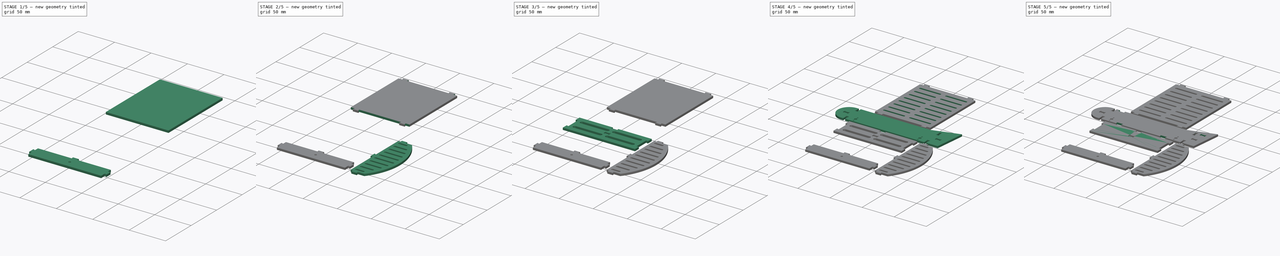
[diagram: build sequence overview — one tinted view per stage of 5, left to right]
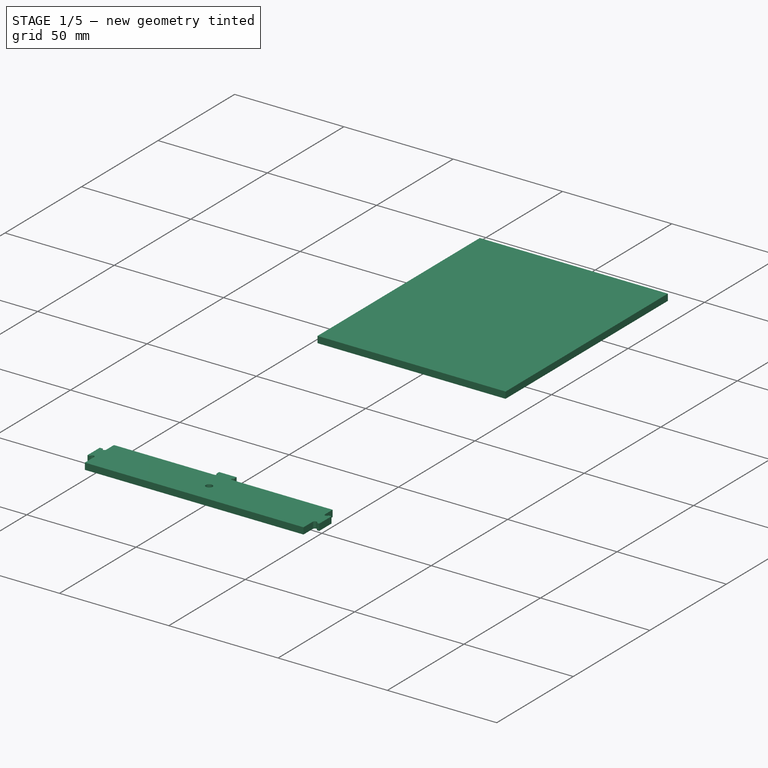
[diagram: stage 1 of 5 — iso view after this stage's code; geometry added in this stage tinted green]
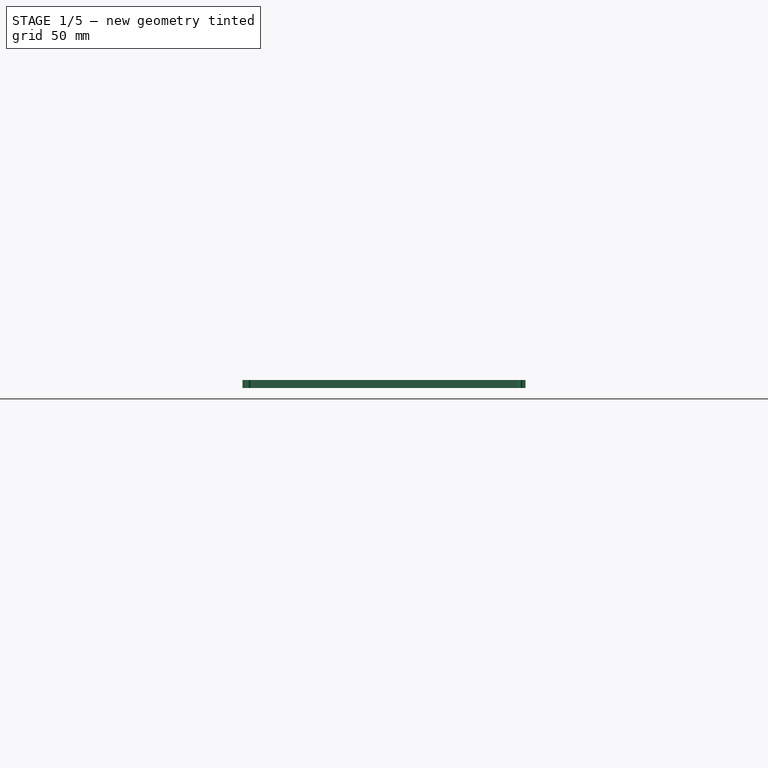
[diagram: stage 1 of 5 — front view after this stage's code; geometry added in this stage tinted green]
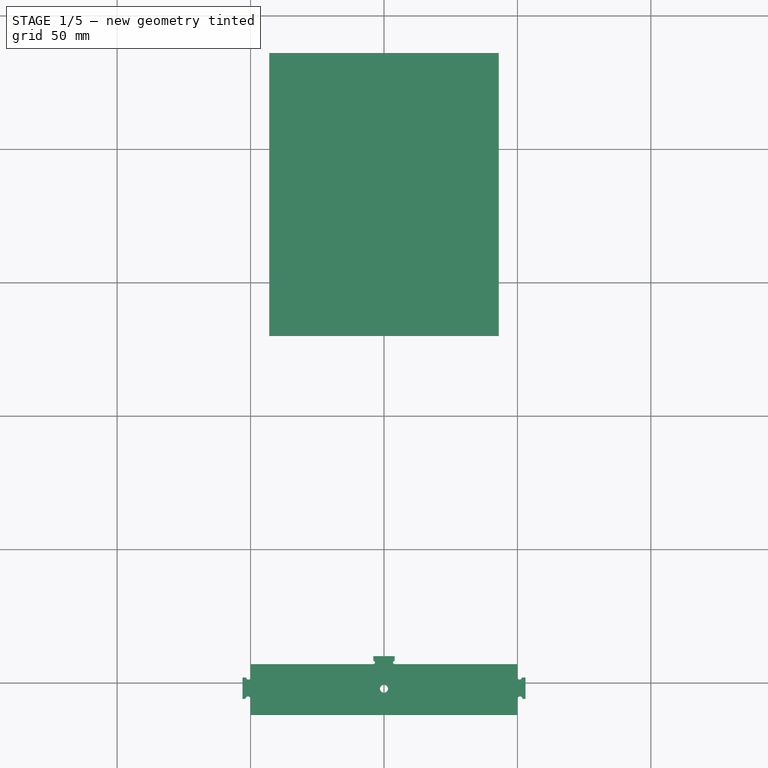
[diagram: stage 1 of 5 — top view after this stage's code; geometry added in this stage tinted green]
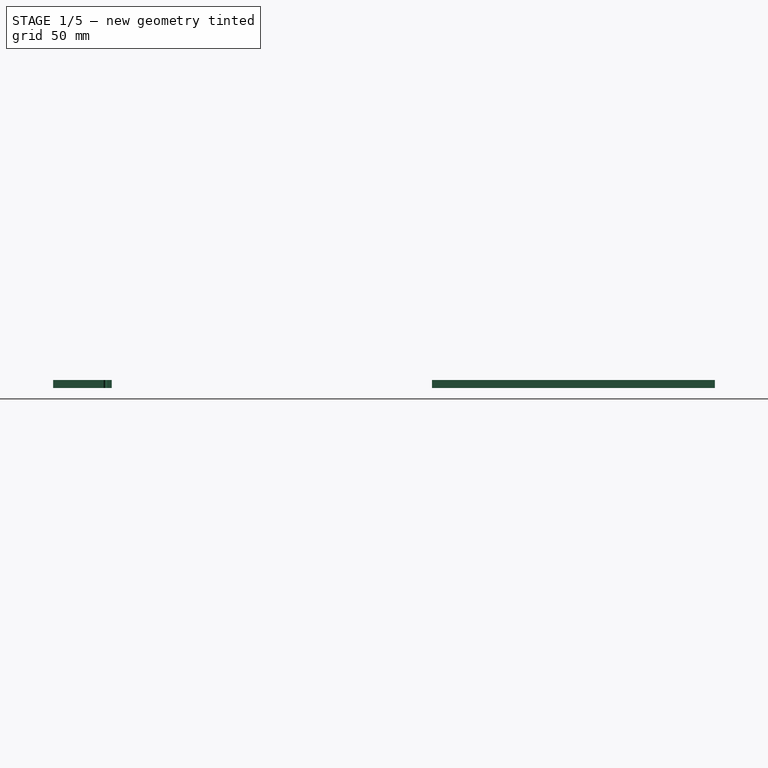
[diagram: stage 1 of 5 — right view after this stage's code; geometry added in this stage tinted green]
FCSTD DOCUMENT  (FreeCAD 0.14R2804 (Git))
Label: ac
License: CC-BY 3.0
LicenseURL: http://creativecommons.org/licenses/by/3.0/
objects: Sketcher::SketchObject×17, PartDesign::Pocket×13, PartDesign::Mirrored×6, PartDesign::Pad×5, PartDesign::LinearPattern×2, PartDesign::MultiTransform×2
note: 63 computed .brp shape members not serialized (recipe doc carries the construction recipe); baked Part::Feature solids carry a one-line shape summary decoded from their .brp

FEATURE [Sketcher::SketchObject] Sketch009
  sketch-geometry (4):
    g0: LineSegment StartX=-53 StartY=-90 StartZ=0 EndX=53 EndY=-90 EndZ=0
    g1: LineSegment StartX=53 StartY=-90 StartZ=0 EndX=53 EndY=-112 EndZ=0
    g2: LineSegment StartX=53 StartY=-112 StartZ=0 EndX=-53 EndY=-112 EndZ=0
    g3: LineSegment StartX=-53 StartY=-112 StartZ=0 EndX=-53 EndY=-90 EndZ=0
  constraints (12):
    c: Coincident(g0,g1)
    c: Coincident(g1,g2)
    c: Coincident(g2,g3)
    c: Coincident(g3,g0)
    c: Horizontal(g0)
    c: Horizontal(g2)
    c: Vertical(g1)
    c: Vertical(g3)
    c: Symmetric(g0,g0,g-2)
    c: DistanceX(g0) = 106
    c: DistanceY(g1) = -22
    c: DistanceY(g-1,g0) = -90
FEATURE [PartDesign::Pad] Pad003
  Length = 3
  Length2 = 100
  Sketch = -> Sketch009
  Type = 0
FEATURE [Sketcher::SketchObject] Sketch001001
  ExternalGeometry = -> [Pad003]
  Placement = pos=(0,0,3) rot=(0,0,1;0rad)
  Support = -> Pad003 [Face6]
  sketch-geometry (16):
    g0: LineSegment [constr] StartX=-53 StartY=-106 StartZ=0 EndX=-50 EndY=-106 EndZ=0
    g1: LineSegment StartX=-50 StartY=-106 StartZ=0 EndX=-50 EndY=-112 EndZ=0
    g2: LineSegment StartX=-50 StartY=-112 StartZ=0 EndX=-53 EndY=-112 EndZ=0
    g3: LineSegment StartX=-53 StartY=-112 StartZ=0 EndX=-53 EndY=-106 EndZ=0
    g4: LineSegment StartX=-4 StartY=-90 StartZ=0 EndX=-53 EndY=-90 EndZ=0
    g5: LineSegment StartX=-53 StartY=-90 StartZ=0 EndX=-53 EndY=-98 EndZ=0
    g6: LineSegment [constr] StartX=-53 StartY=-98 StartZ=0 EndX=-50 EndY=-98 EndZ=0
    g7: LineSegment StartX=-50 StartY=-98 StartZ=0 EndX=-50 EndY=-93 EndZ=0
    g8: LineSegment StartX=-50 StartY=-93 StartZ=0 EndX=-4 EndY=-93 EndZ=0
    g9: LineSegment [constr] StartX=-4 StartY=-93 StartZ=0 EndX=-4 EndY=-90 EndZ=0
    g10: ArcOfCircle CenterX=-4 CenterY=-92.3621 CenterZ=0 NormalX=0 NormalY=0 NormalZ=1 Radius=0.637859 StartAngle=4.71239 EndAngle=7.85398
    g11: LineSegment StartX=-4 StartY=-90 StartZ=0 EndX=-4 EndY=-91.7243 EndZ=0
    g12: ArcOfCircle CenterX=-50.8273 CenterY=-98 CenterZ=0 NormalX=0 NormalY=0 NormalZ=1 Radius=0.827252 StartAngle=3.14159 EndAngle=6.28319
    g13: LineSegment StartX=-51.6545 StartY=-98 StartZ=0 EndX=-53 EndY=-98 EndZ=0
    g14: ArcOfCircle CenterX=-50.962 CenterY=-106 CenterZ=0 NormalX=0 NormalY=0 NormalZ=1 Radius=0.961998 StartAngle=0 EndAngle=3.14159
    g15: LineSegment StartX=-53 StartY=-106 StartZ=0 EndX=-51.924 EndY=-106 EndZ=0
  constraints (43):
    c: Coincident(g0,g1)
    c: Coincident(g1,g2)
    c: Coincident(g2,g3)
    c: Coincident(g3,g0)
    c: Horizontal(g0)
    c: Horizontal(g2)
    c: Vertical(g1)
    c: Vertical(g3)
    c: Coincident(g4,g5)
    c: Coincident(g5,g6)
    c: Horizontal(g6)
    c: Coincident(g6,g7)
    c: Vertical(g7)
    c: Coincident(g7,g8)
    c: Coincident(g8,g9)
    c: Coincident(g9,g4)
    c: Coincident(g2,g-4)
    c: PointOnObject(g5,g-4)
    c: Coincident(g4,g-4)
    c: PointOnObject(g4,g-3)
    c: Vertical(g9)
    c: Horizontal(g8)
    c: Equal(g0,g6)
    c: Equal(g6,g9)
    c: DistanceX(g2) = -3
    c: DistanceY(g7) = 5
    c: DistanceX(g-1,g4) = -4
    c: DistanceY(g6,g0) = -8
    c: PointOnObject(g10,g9)
    c: PointOnObject(g10,g9)
    c: Coincident(g10,g8)
    c: Coincident(g10,g11)
    c: Coincident(g11,g4)
    c: PointOnObject(g12,g6)
    c: Coincident(g12,g6)
    c: PointOnObject(g12,g6)
    c: Coincident(g13,g12)
    c: Coincident(g13,g5)
    c: PointOnObject(g14,g0)
    c: Coincident(g14,g0)
    c: PointOnObject(g14,g0)
    c: Coincident(g14,g15)
    c: Coincident(g15,g0)
FEATURE [PartDesign::Pocket] Pocket003002
  Length = 5
  Sketch = -> Sketch001001
  Type = 1
FEATURE [PartDesign::Mirrored] Mirrored002
  MirrorPlane = -> Sketch001001 [V_Axis]
  Originals = -> [Pocket003002]
FEATURE [Sketcher::SketchObject] Sketch001002
  sketch-geometry (4):
    g0: LineSegment StartX=-43 StartY=136 StartZ=0 EndX=43 EndY=136 EndZ=0
    g1: LineSegment StartX=43 StartY=136 StartZ=0 EndX=43 EndY=30 EndZ=0
    g2: LineSegment StartX=43 StartY=30 StartZ=0 EndX=-43 EndY=30 EndZ=0
    g3: LineSegment StartX=-43 StartY=30 StartZ=0 EndX=-43 EndY=136 EndZ=0
  constraints (12):
    c: Coincident(g0,g1)
    c: Coincident(g1,g2)
    c: Coincident(g2,g3)
    c: Coincident(g3,g0)
    c: Horizontal(g0)
    c: Horizontal(g2)
    c: Vertical(g1)
    c: Vertical(g3)
    c: DistanceY(g0,g1) = -106
    c: Symmetric(g2,g1,g-2)
    c: DistanceY(g-1,g1) = 30
    c: DistanceX(g0) = 86
FEATURE [PartDesign::Pad] Pad004
  Length = 3
  Length2 = 100
  Sketch = -> Sketch001002
  Type = 0
FEATURE [Sketcher::SketchObject] Sketch001007
  ExternalGeometry = -> [Mirrored002]
  Placement = pos=(0,0,3) rot=(0,0,1;0rad)
  Support = -> Mirrored002 [Face3]
  sketch-geometry (2):
    g0: Circle CenterX=0 CenterY=-102.207 CenterZ=0 NormalX=0 NormalY=0 NormalZ=1 Radius=1.5
    g1: LineSegment [constr] StartX=50 StartY=-93 StartZ=0 EndX=-50.2865 EndY=-111.468 EndZ=0
  constraints (4):
    c: PointOnObject(g0,g-2)
    c: Coincident(g1,g-3)
    c: PointOnObject(g0,g1)
    c: Radius(g0) = 1.5
FEATURE [PartDesign::Pocket] Pocket003007  label="Top (2)"
  Length = 5
  Sketch = -> Sketch001007
  Type = 1
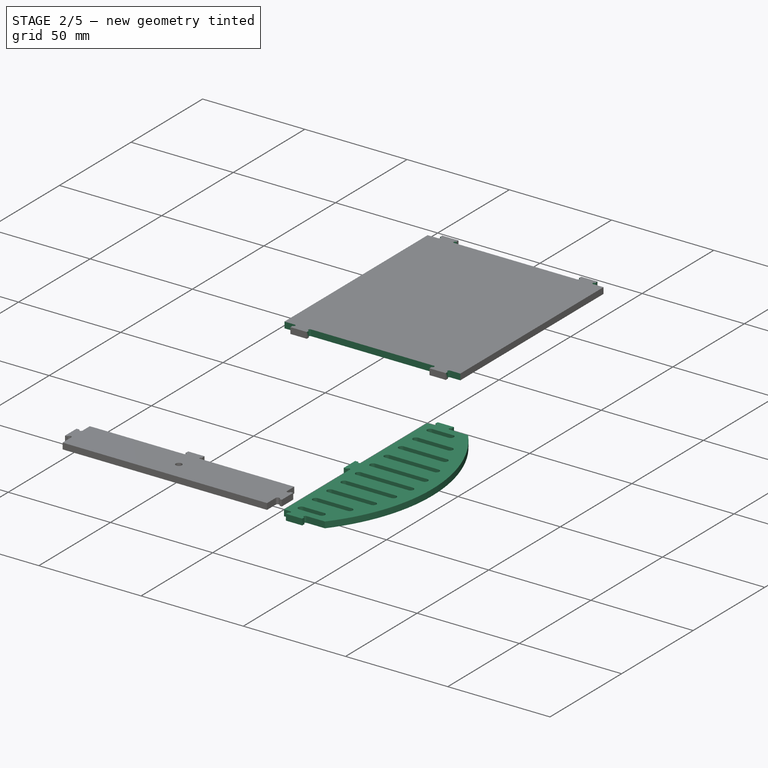
[diagram: stage 2 of 5 — iso view after this stage's code; geometry added in this stage tinted green]
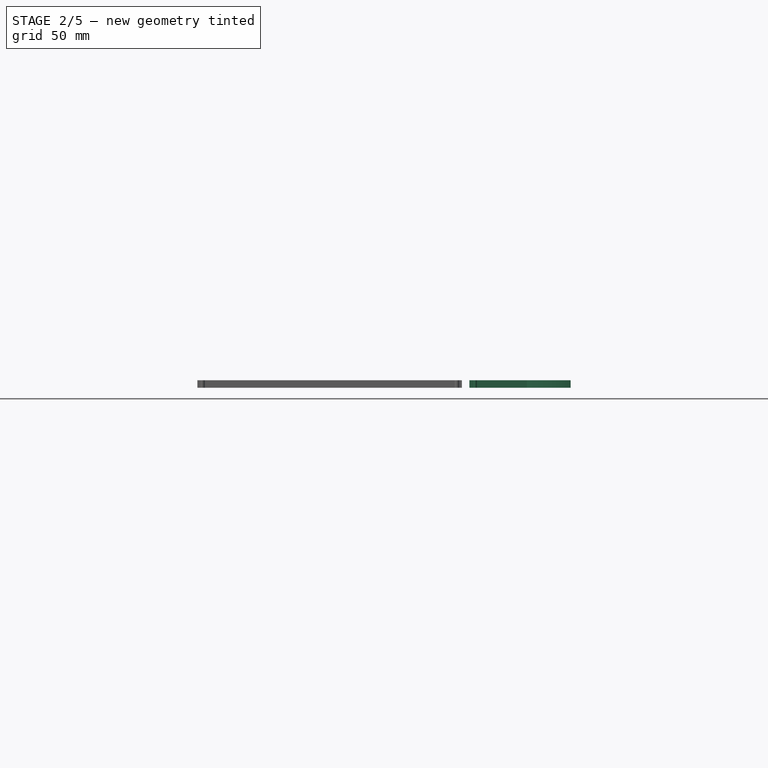
[diagram: stage 2 of 5 — front view after this stage's code; geometry added in this stage tinted green]
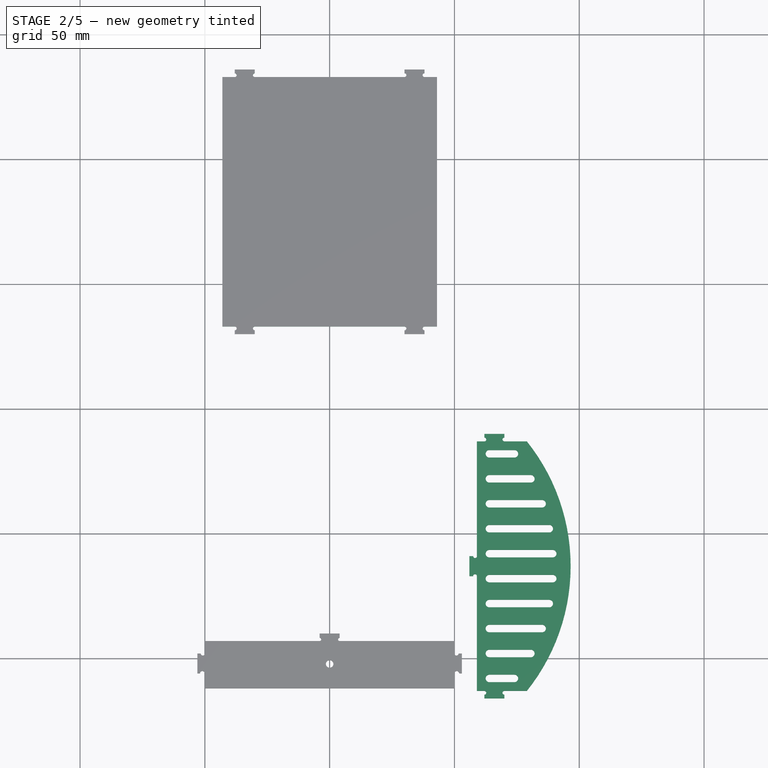
[diagram: stage 2 of 5 — top view after this stage's code; geometry added in this stage tinted green]
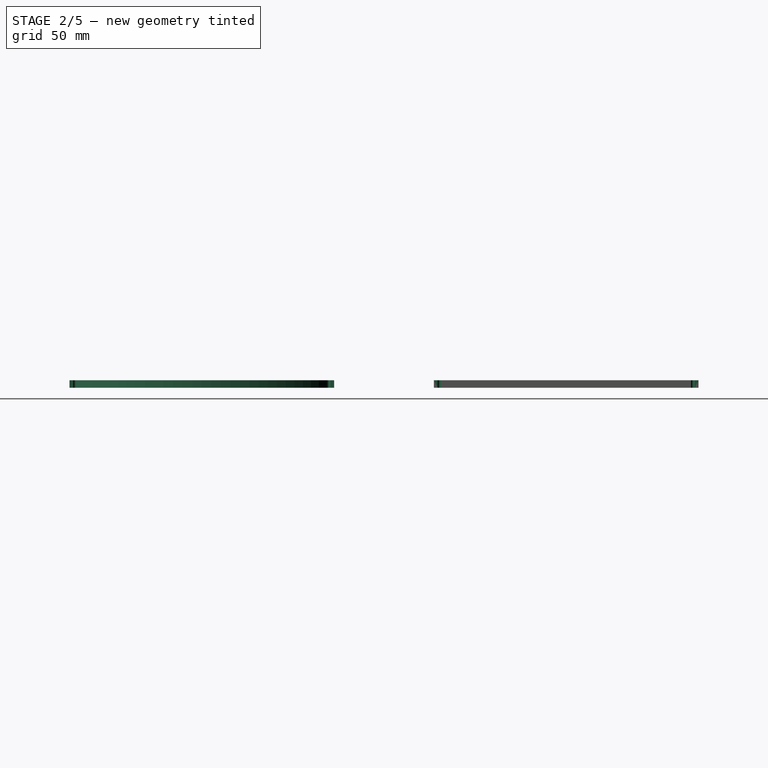
[diagram: stage 2 of 5 — right view after this stage's code; geometry added in this stage tinted green]
FEATURE [Sketcher::SketchObject] Sketch006
  sketch-geometry (7):
    g0: LineSegment [constr] StartX=0 StartY=-63 StartZ=0 EndX=84.8615 EndY=-63 EndZ=0
    g1: LineSegment StartX=79 StartY=-10 StartZ=0 EndX=56 EndY=-10 EndZ=0
    g2: LineSegment StartX=56 StartY=-10 StartZ=0 EndX=56 EndY=-116 EndZ=0
    g3: LineSegment StartX=56 StartY=-116 StartZ=0 EndX=79 EndY=-116 EndZ=0
    g4: LineSegment StartX=79 StartY=-10 StartZ=0 EndX=79 EndY=-13 EndZ=0
    g5: LineSegment StartX=79 StartY=-116 StartZ=0 EndX=79 EndY=-113 EndZ=0
    g6: ArcOfCircle CenterX=16.55 CenterY=-63 CenterZ=0 NormalX=0 NormalY=0 NormalZ=1 Radius=80 StartAngle=5.60805 EndAngle=6.95832
  constraints (22):
    c: PointOnObject(g0,g-2)
    c: Horizontal(g0)
    c: Horizontal(g1)
    c: Coincident(g1,g2)
    c: Coincident(g2,g3)
    c: Horizontal(g3)
    c: Coincident(g4,g1)
    c: Vertical(g4)
    c: Symmetric(g1,g2,g0)
    c: DistanceY(g2) = -106
    c: Equal(g1,g3)
    c: DistanceY(g-1,g0) = -63
    c: DistanceX(g-1,g1) = 56
    c: DistanceY(g4) = -3
    c: Coincident(g5,g3)
    c: Vertical(g5)
    c: Equal(g5,g4)
    c: PointOnObject(g6,g0)
    c: Coincident(g6,g5)
    c: Coincident(g6,g4)
    c: Radius(g6) = 80
    c: DistanceX(g3) = 23
FEATURE [PartDesign::Pad] Pad002
  Length = 3
  Length2 = 100
  Sketch = -> Sketch006
  Type = 0
FEATURE [Sketcher::SketchObject] Sketch007
  ExternalGeometry = -> [Pad002]
  Placement = pos=(0,0,3) rot=(0,0,1;0rad)
  Support = -> Pad002 [Face8]
  sketch-geometry (32):
    g0: LineSegment StartX=79 StartY=-10 StartZ=0 EndX=70 EndY=-10 EndZ=0
    g1: LineSegment [constr] StartX=70 StartY=-10 StartZ=0 EndX=70 EndY=-13 EndZ=0
    g2: LineSegment StartX=70 StartY=-13 StartZ=0 EndX=79 EndY=-13 EndZ=0
    g3: LineSegment StartX=79 StartY=-13 StartZ=0 EndX=79 EndY=-10 EndZ=0
    g4: LineSegment [constr] StartX=62 StartY=-10 StartZ=0 EndX=62 EndY=-13 EndZ=0
    g5: LineSegment StartX=62 StartY=-13 StartZ=0 EndX=59 EndY=-13 EndZ=0
    g6: LineSegment StartX=59 StartY=-13 StartZ=0 EndX=59 EndY=-59 EndZ=0
    g7: LineSegment [constr] StartX=59 StartY=-59 StartZ=0 EndX=56 EndY=-59 EndZ=0
    g8: LineSegment StartX=62 StartY=-10 StartZ=0 EndX=56 EndY=-10 EndZ=0
    g9: LineSegment StartX=56 StartY=-10 StartZ=0 EndX=56 EndY=-59 EndZ=0
    g10: LineSegment StartX=79 StartY=-116 StartZ=0 EndX=70 EndY=-116 EndZ=0
    g11: LineSegment [constr] StartX=70 StartY=-116 StartZ=0 EndX=70 EndY=-113 EndZ=0
    g12: LineSegment StartX=70 StartY=-113 StartZ=0 EndX=79 EndY=-113 EndZ=0
    g13: LineSegment StartX=79 StartY=-113 StartZ=0 EndX=79 EndY=-116 EndZ=0
    g14: LineSegment [constr] StartX=62 StartY=-116 StartZ=0 EndX=62 EndY=-113 EndZ=0
    g15: LineSegment StartX=62 StartY=-113 StartZ=0 EndX=59 EndY=-113 EndZ=0
    g16: LineSegment StartX=59 StartY=-113 StartZ=0 EndX=59 EndY=-67 EndZ=0
    g17: LineSegment [constr] StartX=59 StartY=-67 StartZ=0 EndX=56 EndY=-67 EndZ=0
    g18: LineSegment StartX=56 StartY=-67 StartZ=0 EndX=56 EndY=-116 EndZ=0
    g19: LineSegment StartX=56 StartY=-116 StartZ=0 EndX=62 EndY=-116 EndZ=0
    g20: ArcOfCircle CenterX=70 CenterY=-12.249 CenterZ=0 NormalX=0 NormalY=0 NormalZ=1 Radius=0.751 StartAngle=1.5708 EndAngle=4.71239
    g21: ArcOfCircle CenterX=62 CenterY=-12.249 CenterZ=0 NormalX=0 NormalY=0 NormalZ=1 Radius=0.751 StartAngle=4.71239 EndAngle=7.85398
    g22: ArcOfCircle CenterX=58.249 CenterY=-59 CenterZ=0 NormalX=0 NormalY=0 NormalZ=1 Radius=0.751 StartAngle=3.14159 EndAngle=6.28319
    g23: ArcOfCircle CenterX=58.249 CenterY=-67 CenterZ=0 NormalX=0 NormalY=0 NormalZ=1 Radius=0.751 StartAngle=0 EndAngle=3.14159
    g24: ArcOfCircle CenterX=62 CenterY=-113.751 CenterZ=0 NormalX=0 NormalY=0 NormalZ=1 Radius=0.751 StartAngle=4.71239 EndAngle=7.85398
    g25: ArcOfCircle CenterX=70 CenterY=-113.751 CenterZ=0 NormalX=0 NormalY=0 NormalZ=1 Radius=0.751 StartAngle=1.5708 EndAngle=4.71239
    g26: LineSegment StartX=62 StartY=-10 StartZ=0 EndX=62 EndY=-11.498 EndZ=0
    g27: LineSegment StartX=70 StartY=-10 StartZ=0 EndX=70 EndY=-11.498 EndZ=0
    g28: LineSegment StartX=57.498 StartY=-59 StartZ=0 EndX=56 EndY=-59 EndZ=0
    g29: LineSegment StartX=56 StartY=-67 StartZ=0 EndX=57.498 EndY=-67 EndZ=0
    g30: LineSegment StartX=62 StartY=-114.502 StartZ=0 EndX=62 EndY=-116 EndZ=0
    g31: LineSegment StartX=70 StartY=-114.502 StartZ=0 EndX=70 EndY=-116 EndZ=0
  constraints (92):
    c: Coincident(g0,g1)
    c: Coincident(g1,g2)
    c: Coincident(g2,g3)
    c: Coincident(g3,g0)
    c: Horizontal(g0)
    c: Horizontal(g2)
    c: Vertical(g1)
    c: Vertical(g3)
    c: Coincident(g0,g-4)
    c: Coincident(g2,g-6)
    c: PointOnObject(g4,g-4)
    c: Coincident(g4,g5)
    c: Coincident(g5,g6)
    c: Vertical(g6)
    c: Coincident(g6,g7)
    c: PointOnObject(g7,g-3)
    c: Horizontal(g7)
    c: Horizontal(g5)
    c: Vertical(g4)
    c: Coincident(g8,g4)
    c: Coincident(g8,g9)
    c: Coincident(g-4,g8)
    c: Coincident(g7,g9)
    c: Equal(g4,g1)
    c: Equal(g1,g7)
    c: DistanceX(g4,g0) = 8
    c: DistanceX(g5) = -3
    c: Coincident(g10,g11)
    c: Coincident(g11,g12)
    c: Coincident(g12,g13)
    c: Coincident(g13,g10)
    c: Horizontal(g10)
    c: Horizontal(g12)
    c: Vertical(g11)
    c: Vertical(g13)
    c: Coincident(g10,g-5)
    c: PointOnObject(g14,g-5)
    c: Vertical(g14)
    c: Coincident(g14,g15)
    c: Horizontal(g15)
    c: Coincident(g15,g16)
    c: Vertical(g16)
    c: Coincident(g16,g17)
    c: PointOnObject(g17,g-3)
    c: Coincident(g17,g18)
    c: Coincident(g18,g19)
    c: Coincident(g19,g14)
    c: Coincident(g-5,g18)
    c: DistanceX(g14,g10) = 8
    c: Horizontal(g17)
    c: Equal(g9,g18)
    c: Equal(g17,g14)
    c: Equal(g14,g15)
    c: Equal(g15,g11)
    c: DistanceX(g17) = -3
    c: DistanceY(g17,g7) = 8
    c: PointOnObject(g20,g1)
    c: Coincident(g20,g1)
    c: PointOnObject(g20,g1)
    c: PointOnObject(g21,g4)
    c: Coincident(g21,g4)
    c: PointOnObject(g21,g4)
    c: PointOnObject(g22,g7)
    c: Coincident(g22,g6)
    c: PointOnObject(g22,g7)
    c: PointOnObject(g23,g17)
    c: Coincident(g23,g16)
    c: PointOnObject(g23,g17)
    c: PointOnObject(g24,g14)
    c: Coincident(g24,g14)
    c: PointOnObject(g24,g14)
    c: PointOnObject(g25,g11)
    c: Coincident(g25,g11)
    c: PointOnObject(g25,g11)
    c: Equal(g24,g25)
    c: Equal(g25,g23)
    c: Equal(g23,g22)
    c: Equal(g22,g21)
    c: Equal(g21,g20)
    c: Radius(g20) = 0.751
    c: Coincident(g26,g4)
    c: Coincident(g26,g21)
    c: Coincident(g0,g27)
    c: Coincident(g27,g20)
    c: Coincident(g28,g22)
    c: Coincident(g28,g7)
    c: Coincident(g29,g17)
    c: Coincident(g29,g23)
    c: Coincident(g30,g24)
    c: Coincident(g30,g14)
    c: Coincident(g31,g25)
    c: Coincident(g31,g10)
FEATURE [PartDesign::Pocket] Pocket004
  Length = 5
  Sketch = -> Sketch007
  Type = 1
FEATURE [Sketcher::SketchObject] Sketch001003
  ExternalGeometry = -> [Pad004]
  Placement = pos=(0,0,3) rot=(0,0,1;0rad)
  Support = -> Pad004 [Face6]
  sketch-geometry (24):
    g0: LineSegment StartX=-43 StartY=30 StartZ=0 EndX=-38 EndY=30 EndZ=0
    g1: LineSegment [constr] StartX=-38 StartY=30 StartZ=0 EndX=-38 EndY=33 EndZ=0
    g2: LineSegment StartX=-38 StartY=33 StartZ=0 EndX=-43 EndY=33 EndZ=0
    g3: LineSegment StartX=-43 StartY=33 StartZ=0 EndX=-43 EndY=30 EndZ=0
    g4: LineSegment StartX=-30 StartY=30 StartZ=0 EndX=0 EndY=30 EndZ=0
    g5: LineSegment StartX=0 StartY=30 StartZ=0 EndX=0 EndY=33 EndZ=0
    g6: LineSegment StartX=0 StartY=33 StartZ=0 EndX=-30 EndY=33 EndZ=0
    g7: LineSegment [constr] StartX=-30 StartY=33 StartZ=0 EndX=-30 EndY=30 EndZ=0
    g8: LineSegment StartX=-43 StartY=136 StartZ=0 EndX=-38 EndY=136 EndZ=0
    g9: LineSegment [constr] StartX=-38 StartY=136 StartZ=0 EndX=-38 EndY=133 EndZ=0
    g10: LineSegment StartX=-38 StartY=133 StartZ=0 EndX=-43 EndY=133 EndZ=0
    g11: LineSegment StartX=-43 StartY=133 StartZ=0 EndX=-43 EndY=136 EndZ=0
    g12: LineSegment StartX=-30 StartY=136 StartZ=0 EndX=0 EndY=136 EndZ=0
    g13: LineSegment StartX=0 StartY=136 StartZ=0 EndX=0 EndY=133 EndZ=0
    g14: LineSegment StartX=0 StartY=133 StartZ=0 EndX=-30 EndY=133 EndZ=0
    g15: LineSegment [constr] StartX=-30 StartY=133 StartZ=0 EndX=-30 EndY=136 EndZ=0
    g16: ArcOfCircle CenterX=-30 CenterY=133.751 CenterZ=0 NormalX=0 NormalY=0 NormalZ=1 Radius=0.751 StartAngle=1.5708 EndAngle=4.71239
    g17: ArcOfCircle CenterX=-38 CenterY=133.751 CenterZ=0 NormalX=0 NormalY=0 NormalZ=1 Radius=0.751 StartAngle=4.71239 EndAngle=7.85398
    g18: LineSegment StartX=-30 StartY=136 StartZ=0 EndX=-30 EndY=134.502 EndZ=0
    g19: LineSegment StartX=-38 StartY=134.502 StartZ=0 EndX=-38 EndY=136 EndZ=0
    g20: ArcOfCircle CenterX=-38 CenterY=32.249 CenterZ=0 NormalX=0 NormalY=0 NormalZ=1 Radius=0.751 StartAngle=4.71239 EndAngle=7.85398
    g21: ArcOfCircle CenterX=-30 CenterY=32.249 CenterZ=0 NormalX=0 NormalY=0 NormalZ=1 Radius=0.751 StartAngle=1.5708 EndAngle=4.71239
    g22: LineSegment StartX=-38 StartY=31.498 StartZ=0 EndX=-38 EndY=30 EndZ=0
    g23: LineSegment StartX=-30 StartY=31.498 StartZ=0 EndX=-30 EndY=30 EndZ=0
  constraints (70):
    c: Coincident(g0,g1)
    c: Coincident(g1,g2)
    c: Coincident(g2,g3)
    c: Coincident(g3,g0)
    c: Horizontal(g0)
    c: Horizontal(g2)
    c: Vertical(g1)
    c: Vertical(g3)
    c: Coincident(g0,g-4)
    c: Coincident(g4,g5)
    c: Coincident(g5,g6)
    c: Coincident(g6,g7)
    c: Coincident(g7,g4)
    c: Horizontal(g4)
    c: Horizontal(g6)
    c: Vertical(g5)
    c: Vertical(g7)
    c: PointOnObject(g4,g-4)
    c: PointOnObject(g5,g-2)
    c: Coincident(g8,g9)
    c: Coincident(g9,g10)
    c: Coincident(g10,g11)
    c: Coincident(g11,g8)
    c: Horizontal(g8)
    c: Horizontal(g10)
    c: Vertical(g9)
    c: Vertical(g11)
    c: Coincident(g8,g-3)
    c: Coincident(g12,g13)
    c: Coincident(g13,g14)
    c: Coincident(g14,g15)
    c: Coincident(g15,g12)
    c: Horizontal(g12)
    c: Horizontal(g14)
    c: Vertical(g13)
    c: Vertical(g15)
    c: PointOnObject(g12,g-3)
    c: PointOnObject(g13,g-2)
    c: Equal(g15,g11)
    c: Equal(g11,g3)
    c: Equal(g3,g7)
    c: DistanceY(g3) = -3
    c: DistanceX(g0,g4) = 8
    c: DistanceX(g6) = -30
    c: Equal(g6,g14)
    c: Equal(g10,g2)
    c: PointOnObject(g16,g15)
    c: Coincident(g16,g14)
    c: PointOnObject(g16,g15)
    c: PointOnObject(g17,g9)
    c: Coincident(g17,g9)
    c: PointOnObject(g17,g9)
    c: Coincident(g16,g18)
    c: Coincident(g18,g12)
    c: Coincident(g17,g19)
    c: Coincident(g19,g8)
    c: Equal(g16,g17)
    c: Radius(g16) = 0.751
    c: PointOnObject(g20,g1)
    c: Coincident(g20,g1)
    c: PointOnObject(g20,g1)
    c: PointOnObject(g21,g7)
    c: Coincident(g21,g6)
    c: PointOnObject(g21,g7)
    c: Equal(g20,g21)
    c: Equal(g21,g16)
    c: Coincident(g0,g22)
    c: Coincident(g22,g20)
    c: Coincident(g23,g4)
    c: Coincident(g23,g21)
FEATURE [PartDesign::Pocket] Pocket003003
  Length = 5
  Sketch = -> Sketch001003
  Type = 1
FEATURE [PartDesign::Mirrored] Mirrored003
  MirrorPlane = -> Sketch001003 [V_Axis]
  Originals = -> [Pocket003003]
FEATURE [Sketcher::SketchObject] Sketch001006
  ExternalGeometry = -> [Pocket004]
  Placement = pos=(0,0,3) rot=(0,0,1;0rad)
  Support = -> Pocket004 [Face5]
  sketch-geometry (42):
    g0: LineSegment StartX=64 StartY=-109.5 StartZ=0 EndX=74.0305 EndY=-109.5 EndZ=0
    g1: LineSegment StartX=64 StartY=-106.5 StartZ=0 EndX=74.0305 EndY=-106.5 EndZ=0
    g2: ArcOfCircle CenterX=74.0305 CenterY=-108 CenterZ=0 NormalX=0 NormalY=0 NormalZ=1 Radius=1.5 StartAngle=4.71239 EndAngle=7.85398
    g3: ArcOfCircle CenterX=64 CenterY=-108 CenterZ=0 NormalX=0 NormalY=0 NormalZ=1 Radius=1.5 StartAngle=1.5708 EndAngle=4.71239
    g4: ArcOfCircle [constr] CenterX=16.55 CenterY=-63 CenterZ=0 NormalX=0 NormalY=0 NormalZ=1 Radius=73 StartAngle=5.5926 EndAngle=6.97377
    g5: LineSegment [constr] StartX=64 StartY=-109.5 StartZ=0 EndX=64 EndY=-16.5 EndZ=0
    g6: LineSegment StartX=64 StartY=-96.5 StartZ=0 EndX=80.6125 EndY=-96.5 EndZ=0
    g7: LineSegment StartX=64 StartY=-99.5 StartZ=0 EndX=80.6125 EndY=-99.5 EndZ=0
    g8: ArcOfCircle CenterX=80.6125 CenterY=-98 CenterZ=0 NormalX=0 NormalY=0 NormalZ=1 Radius=1.5 StartAngle=4.71239 EndAngle=7.85398
    g9: ArcOfCircle CenterX=64 CenterY=-98 CenterZ=0 NormalX=0 NormalY=0 NormalZ=1 Radius=1.5 StartAngle=1.5708 EndAngle=4.71239
    g10: LineSegment StartX=64 StartY=-86.5 StartZ=0 EndX=85.1357 EndY=-86.5 EndZ=0
    g11: LineSegment StartX=64 StartY=-89.5 StartZ=0 EndX=85.1357 EndY=-89.5 EndZ=0
    g12: ArcOfCircle CenterX=64 CenterY=-88 CenterZ=0 NormalX=0 NormalY=0 NormalZ=1 Radius=1.5 StartAngle=1.5708 EndAngle=4.71239
    g13: ArcOfCircle CenterX=85.1357 CenterY=-88 CenterZ=0 NormalX=0 NormalY=0 NormalZ=1 Radius=1.5 StartAngle=4.71239 EndAngle=7.85398
    g14: LineSegment StartX=64 StartY=-76.5 StartZ=0 EndX=87.9923 EndY=-76.5 EndZ=0
    g15: LineSegment StartX=64 StartY=-79.5 StartZ=0 EndX=87.9923 EndY=-79.5 EndZ=0
    g16: ArcOfCircle CenterX=87.9923 CenterY=-78 CenterZ=0 NormalX=0 NormalY=0 NormalZ=1 Radius=1.5 StartAngle=4.71239 EndAngle=7.85398
    g17: ArcOfCircle CenterX=64 CenterY=-78 CenterZ=0 NormalX=0 NormalY=0 NormalZ=1 Radius=1.5 StartAngle=1.5708 EndAngle=4.71239
    g18: LineSegment StartX=64 StartY=-69.5 StartZ=0 EndX=89.3786 EndY=-69.5 EndZ=0
    g19: LineSegment StartX=64 StartY=-66.5 StartZ=0 EndX=89.3786 EndY=-66.5 EndZ=0
    g20: ArcOfCircle CenterX=64 CenterY=-68 CenterZ=0 NormalX=0 NormalY=0 NormalZ=1 Radius=1.5 StartAngle=1.5708 EndAngle=4.71239
    g21: ArcOfCircle CenterX=89.3786 CenterY=-68 CenterZ=0 NormalX=0 NormalY=0 NormalZ=1 Radius=1.5 StartAngle=4.71239 EndAngle=7.85398
    g22: LineSegment StartX=64 StartY=-59.5 StartZ=0 EndX=89.3786 EndY=-59.5 EndZ=0
    g23: LineSegment StartX=64 StartY=-56.5 StartZ=0 EndX=89.3786 EndY=-56.5 EndZ=0
    g24: ArcOfCircle CenterX=89.3786 CenterY=-58 CenterZ=0 NormalX=0 NormalY=0 NormalZ=1 Radius=1.5 StartAngle=4.71239 EndAngle=7.85398
    g25: ArcOfCircle CenterX=64 CenterY=-58 CenterZ=0 NormalX=0 NormalY=0 NormalZ=1 Radius=1.5 StartAngle=1.5708 EndAngle=4.71239
    g26: LineSegment StartX=64 StartY=-49.5 StartZ=0 EndX=87.9923 EndY=-49.5 EndZ=0
    g27: LineSegment StartX=64 StartY=-46.5 StartZ=0 EndX=87.9923 EndY=-46.5 EndZ=0
    g28: ArcOfCircle CenterX=87.9923 CenterY=-48 CenterZ=0 NormalX=0 NormalY=0 NormalZ=1 Radius=1.5 StartAngle=4.71239 EndAngle=7.85398
    g29: ArcOfCircle CenterX=64 CenterY=-48 CenterZ=0 NormalX=0 NormalY=0 NormalZ=1 Radius=1.5 StartAngle=1.5708 EndAngle=4.71239
    g30: LineSegment StartX=64 StartY=-39.5 StartZ=0 EndX=85.1357 EndY=-39.5 EndZ=0
    g31: LineSegment StartX=64 StartY=-36.5 StartZ=0 EndX=85.1357 EndY=-36.5 EndZ=0
    g32: ArcOfCircle CenterX=85.1357 CenterY=-38 CenterZ=0 NormalX=0 NormalY=0 NormalZ=1 Radius=1.5 StartAngle=4.71239 EndAngle=7.85398
    g33: ArcOfCircle CenterX=64 CenterY=-38 CenterZ=0 NormalX=0 NormalY=0 NormalZ=1 Radius=1.5 StartAngle=1.5708 EndAngle=4.71239
    g34: LineSegment StartX=64 StartY=-26.5 StartZ=0 EndX=80.6125 EndY=-26.5 EndZ=0
    g35: LineSegment StartX=64 StartY=-29.5 StartZ=0 EndX=80.6125 EndY=-29.5 EndZ=0
    g36: ArcOfCircle CenterX=64 CenterY=-28 CenterZ=0 NormalX=0 NormalY=0 NormalZ=1 Radius=1.5 StartAngle=1.5708 EndAngle=4.71239
    g37: ArcOfCircle CenterX=80.6125 CenterY=-28 CenterZ=0 NormalX=0 NormalY=0 NormalZ=1 Radius=1.5 StartAngle=4.71239 EndAngle=7.85398
    g38: LineSegment StartX=64 StartY=-16.5 StartZ=0 EndX=74.0305 EndY=-16.5 EndZ=0
    g39: LineSegment StartX=64 StartY=-19.5 StartZ=0 EndX=74.0305 EndY=-19.5 EndZ=0
    g40: ArcOfCircle CenterX=74.0305 CenterY=-18 CenterZ=0 NormalX=0 NormalY=0 NormalZ=1 Radius=1.5 StartAngle=4.71239 EndAngle=7.85398
    g41: ArcOfCircle CenterX=64 CenterY=-18 CenterZ=0 NormalX=0 NormalY=0 NormalZ=1 Radius=1.5 StartAngle=1.5708 EndAngle=4.71239
  constraints (108):
    c: Horizontal(g0)
    c: Horizontal(g1)
    c: Tangent(g1,g2)
    c: Tangent(g0,g2)
    c: Tangent(g0,g3)
    c: Tangent(g3,g1)
    c: DistanceY(g0,g1) = 3
    c: DistanceY(g3,g-3) = -5
    c: Coincident(g4,g-4)
    c: Radius(g4) = 73
    c: PointOnObject(g2,g4)
    c: Vertical(g5)
    c: PointOnObject(g3,g5)
    c: Horizontal(g6)
    c: Horizontal(g7)
    c: PointOnObject(g9,g5)
    c: Tangent(g9,g7)
    c: Tangent(g6,g9)
    c: DistanceY(g6,g7) = -3
    c: Tangent(g6,g8)
    c: Tangent(g8,g7)
    c: PointOnObject(g8,g4)
    c: DistanceY(g9,g3) = -10
    c: Horizontal(g10)
    c: Horizontal(g11)
    c: Tangent(g11,g13)
    c: Tangent(g13,g10)
    c: Tangent(g12,g10)
    c: Tangent(g11,g12)
    c: DistanceY(g11,g10) = 3
    c: DistanceY(g12,g9) = -10
    c: PointOnObject(g12,g5)
    c: PointOnObject(g13,g4)
    c: Horizontal(g14)
    c: Horizontal(g15)
    c: Tangent(g16,g15)
    c: Tangent(g16,g14)
    c: Tangent(g15,g17)
    c: Tangent(g17,g14)
    c: DistanceY(g14,g15) = -3
    c: PointOnObject(g17,g5)
    c: PointOnObject(g16,g4)
    c: DistanceY(g12,g17) = 10
    c: PointOnObject(g4,g0)
    c: PointOnObject(g5,g0)
    c: DistanceX(g0,g-3) = -5
    c: Horizontal(g18)
    c: Horizontal(g19)
    c: Tangent(g19,g20)
    c: Tangent(g20,g18)
    c: PointOnObject(g20,g5)
    c: DistanceY(g19,g18) = -3
    c: DistanceY(g20,g17) = -10
    c: Tangent(g21,g18)
    c: Tangent(g21,g19)
    c: PointOnObject(g21,g4)
    c: Horizontal(g22)
    c: Horizontal(g23)
    c: Tangent(g22,g25)
    c: Tangent(g22,g24)
    c: Tangent(g24,g23)
    c: Tangent(g23,g25)
    c: PointOnObject(g25,g5)
    c: PointOnObject(g24,g4)
    c: DistanceY(g20,g25) = 10
    c: DistanceY(g22,g23) = 3
    c: Horizontal(g26)
    c: Horizontal(g27)
    c: Tangent(g26,g28)
    c: Tangent(g28,g27)
    c: Tangent(g26,g29)
    c: Tangent(g27,g29)
    c: DistanceY(g26,g27) = 3
    c: DistanceY(g29,g25) = -10
    c: PointOnObject(g29,g5)
    c: PointOnObject(g28,g4)
    c: Horizontal(g30)
    c: Horizontal(g31)
    c: Tangent(g30,g32)
    c: Tangent(g31,g32)
    c: Tangent(g30,g33)
    c: Tangent(g31,g33)
    c: DistanceY(g31,g30) = -3
    c: DistanceY(g33,g29) = -10
    c: PointOnObject(g33,g5)
    c: PointOnObject(g32,g4)
    c: Horizontal(g34)
    c: Horizontal(g35)
    c: Tangent(g37,g35)
    c: Tangent(g34,g37)
    c: Tangent(g36,g34)
    c: Tangent(g36,g35)
    c: DistanceY(g35,g34) = 3
    c: DistanceY(g33,g36) = 10
    c: PointOnObject(g36,g5)
    c: PointOnObject(g37,g4)
    c: Horizontal(g38)
    c: Horizontal(g39)
    c: Tangent(g41,g38)
    c: Tangent(g41,g39)
    c: Tangent(g39,g40)
    c: Tangent(g38,g40)
    c: DistanceY(g38,g39) = -3
    c: DistanceY(g36,g41) = 10
    c: PointOnObject(g4,g38)
    c: PointOnObject(g5,g38)
    c: PointOnObject(g41,g5)
    c: PointOnObject(g40,g4)
FEATURE [PartDesign::Pocket] Pocket003006  label="Front&Rear(2)"
  Length = 5
  Sketch = -> Sketch001006
  Type = 1
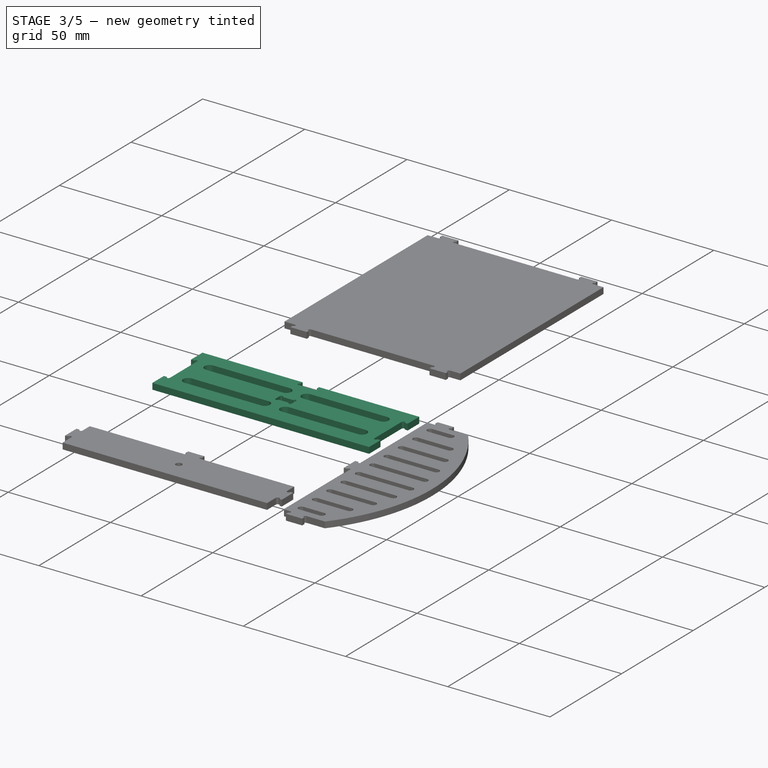
[diagram: stage 3 of 5 — iso view after this stage's code; geometry added in this stage tinted green]
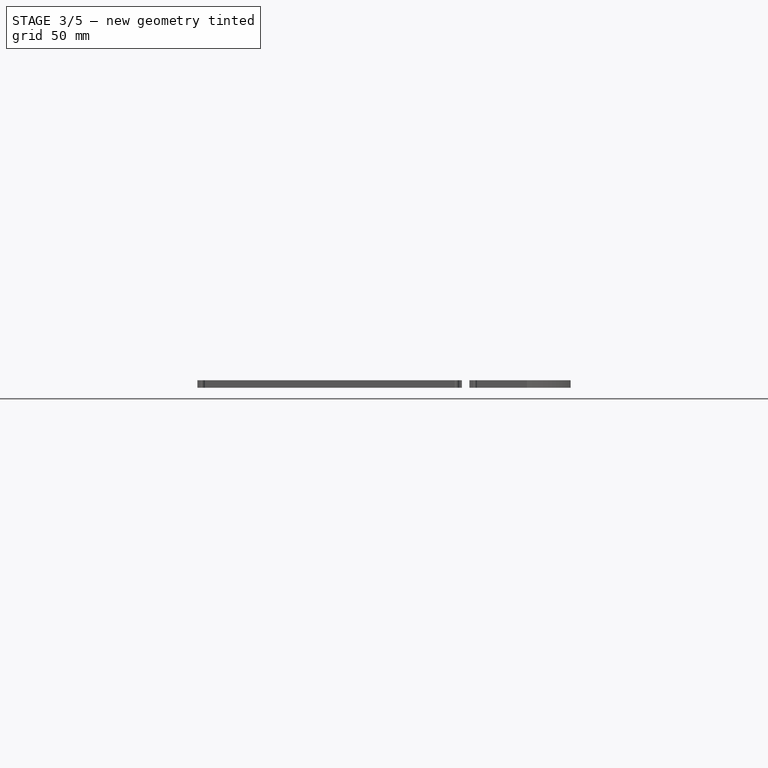
[diagram: stage 3 of 5 — front view after this stage's code; geometry added in this stage tinted green]
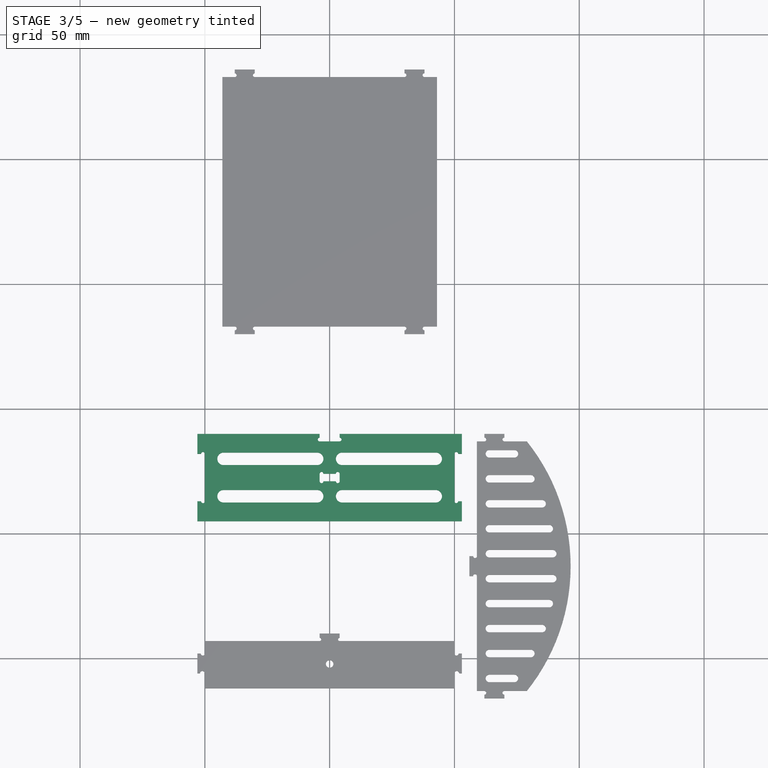
[diagram: stage 3 of 5 — top view after this stage's code; geometry added in this stage tinted green]
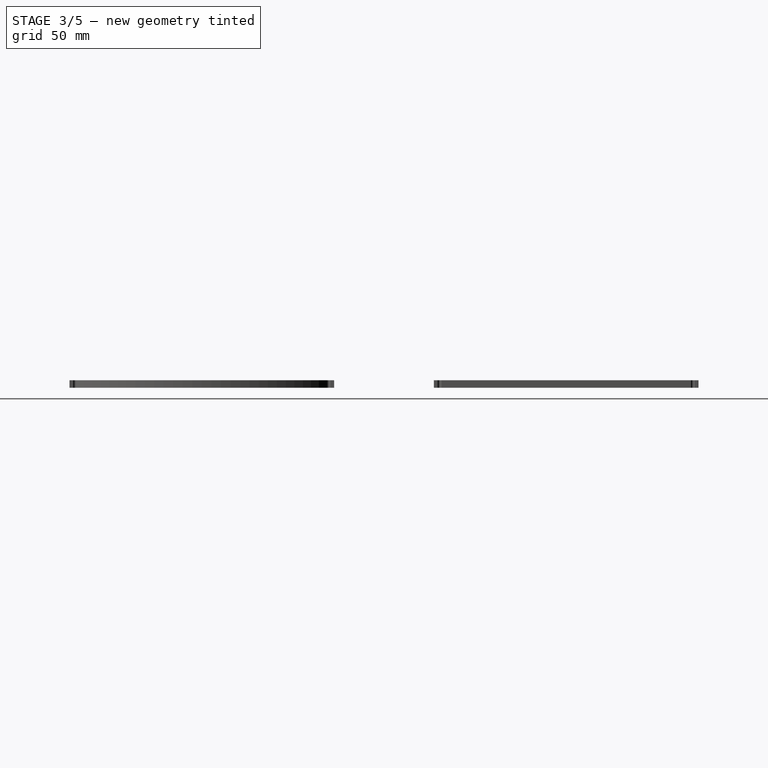
[diagram: stage 3 of 5 — right view after this stage's code; geometry added in this stage tinted green]
FEATURE [Sketcher::SketchObject] Sketch004
  sketch-geometry (4):
    g0: LineSegment StartX=-53 StartY=-10 StartZ=0 EndX=53 EndY=-10 EndZ=0
    g1: LineSegment StartX=53 StartY=-10 StartZ=0 EndX=53 EndY=-45 EndZ=0
    g2: LineSegment StartX=53 StartY=-45 StartZ=0 EndX=-53 EndY=-45 EndZ=0
    g3: LineSegment StartX=-53 StartY=-45 StartZ=0 EndX=-53 EndY=-10 EndZ=0
  constraints (12):
    c: Coincident(g0,g1)
    c: Coincident(g1,g2)
    c: Coincident(g2,g3)
    c: Coincident(g3,g0)
    c: Horizontal(g0)
    c: Horizontal(g2)
    c: Vertical(g1)
    c: Vertical(g3)
    c: DistanceY(g-1,g0) = -10
    c: DistanceY(g1) = -35
    c: DistanceX(g1,g2) = -106
    c: Symmetric(g2,g1,g-2)
FEATURE [PartDesign::Pad] Pad001
  Length = 3
  Length2 = 100
  Sketch = -> Sketch004
  Type = 0
FEATURE [PartDesign::Pocket] Pocket003001
  Length = 5
  Sketch = -> Sketch005
  Type = 1
FEATURE [PartDesign::LinearPattern] LinearPattern
  Direction = -> Sketch001004 [V_Axis]
  Length = 80
  Occurrences = 8
FEATURE [Sketcher::SketchObject] Sketch001005
  ExternalGeometry = -> [Pocket003001]
  Placement = pos=(0,0,3) rot=(0,0,1;0rad)
  Support = -> Pocket003001 [Face5]
  sketch-geometry (4):
    g0: LineSegment StartX=-42.5 StartY=-37.5 StartZ=0 EndX=-5 EndY=-37.5 EndZ=0
    g1: LineSegment StartX=-5 StartY=-32.5 StartZ=0 EndX=-42.5 EndY=-32.5 EndZ=0
    g2: ArcOfCircle CenterX=-5 CenterY=-35 CenterZ=0 NormalX=0 NormalY=0 NormalZ=1 Radius=2.5 StartAngle=4.71239 EndAngle=7.85398
    g3: ArcOfCircle CenterX=-42.5 CenterY=-35 CenterZ=0 NormalX=0 NormalY=0 NormalZ=1 Radius=2.5 StartAngle=1.5708 EndAngle=4.71239
  constraints (10):
    c: Horizontal(g0)
    c: Horizontal(g1)
    c: Tangent(g0,g2)
    c: Tangent(g2,g1)
    c: Tangent(g3,g0)
    c: Tangent(g3,g1)
    c: DistanceY(g3,g-3) = -2
    c: DistanceX(g3,g-3) = -7.5
    c: DistanceY(g0,g1) = 5
    c: DistanceX(g-1,g2) = -5
FEATURE [PartDesign::Pocket] Pocket003005
  Length = 5
  Sketch = -> Sketch001005
  Type = 1
FEATURE [PartDesign::LinearPattern] LinearPattern001
  Direction = -> Sketch001005 [V_Axis]
  Length = 15
  Occurrences = 2
FEATURE [PartDesign::Mirrored] Mirrored005
  MirrorPlane = -> Sketch001005 [V_Axis]
FEATURE [PartDesign::MultiTransform] MultiTransform001  label="Vertical Plate (2)"
  Originals = -> [Pocket003005]
  Transformations = -> [LinearPattern001,Mirrored005]
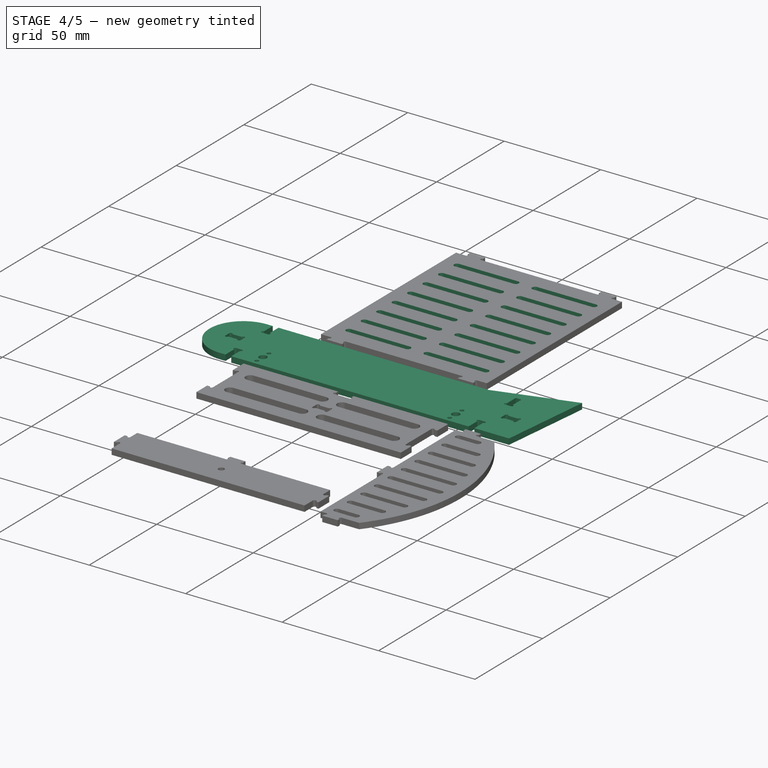
[diagram: stage 4 of 5 — iso view after this stage's code; geometry added in this stage tinted green]
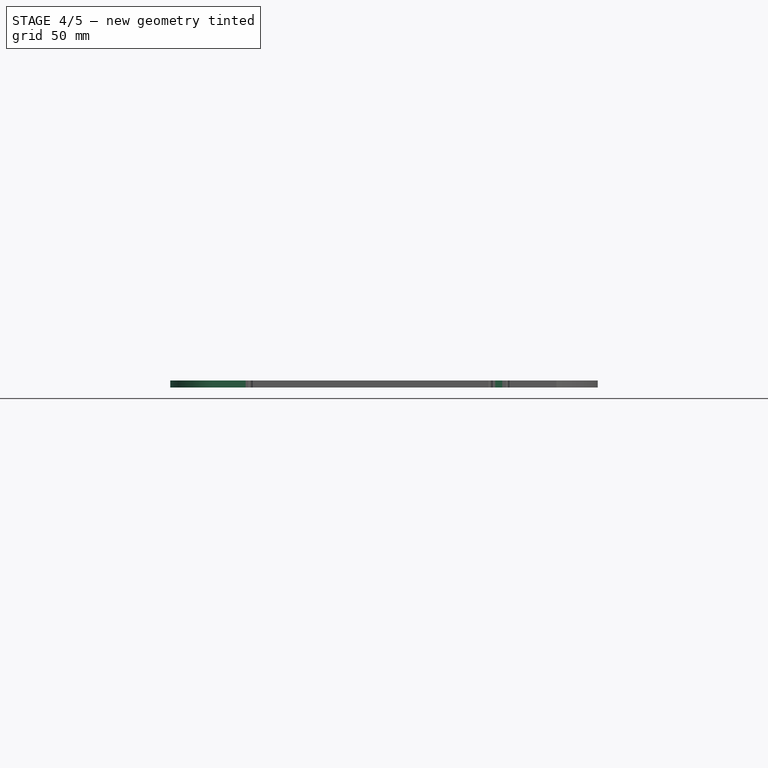
[diagram: stage 4 of 5 — front view after this stage's code; geometry added in this stage tinted green]
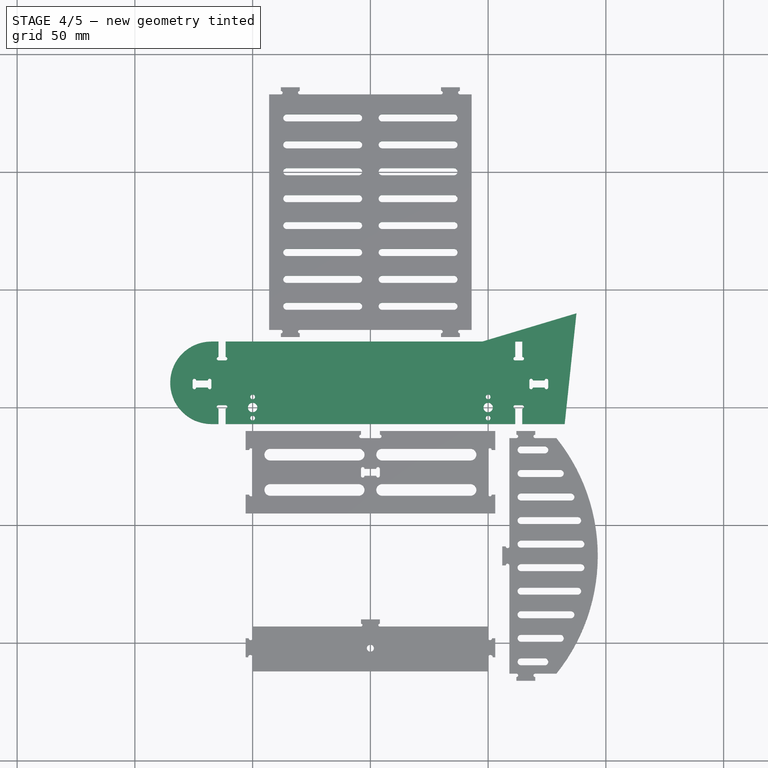
[diagram: stage 4 of 5 — top view after this stage's code; geometry added in this stage tinted green]
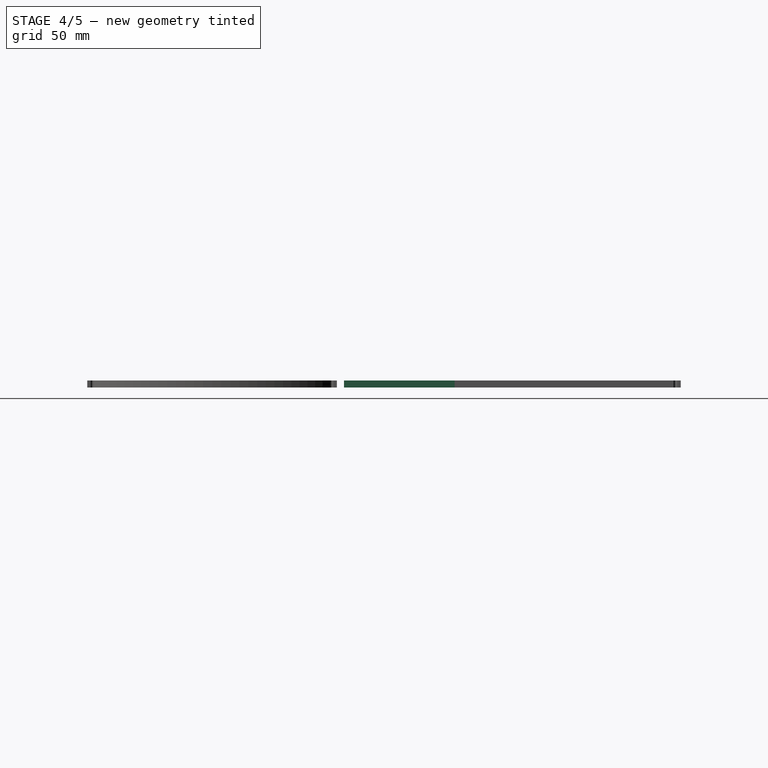
[diagram: stage 4 of 5 — right view after this stage's code; geometry added in this stage tinted green]
FEATURE [Sketcher::SketchObject] Sketch
  sketch-geometry (17):
    g0: LineSegment StartX=-67.5 StartY=28 StartZ=0 EndX=47.5 EndY=28 EndZ=0
    g1: LineSegment StartX=67.5 StartY=-7 StartZ=0 EndX=-67.5 EndY=-7 EndZ=0
    g2: LineSegment [constr] StartX=-67.5 StartY=-7 StartZ=0 EndX=-67.5 EndY=28 EndZ=0
    g3: LineSegment [constr] StartX=-50 StartY=4.5 StartZ=0 EndX=50 EndY=4.5 EndZ=0
    g4: LineSegment [constr] StartX=50 StartY=4.5 StartZ=0 EndX=50 EndY=-4.5 EndZ=0
    g5: LineSegment [constr] StartX=50 StartY=-4.5 StartZ=0 EndX=-50 EndY=-4.5 EndZ=0
    g6: LineSegment [constr] StartX=-50 StartY=-4.5 StartZ=0 EndX=-50 EndY=4.5 EndZ=0
    g7: Circle CenterX=-50 CenterY=4.5 CenterZ=0 NormalX=0 NormalY=0 NormalZ=1 Radius=1
    g8: Circle CenterX=-50 CenterY=-4.5 CenterZ=0 NormalX=0 NormalY=0 NormalZ=1 Radius=1
    g9: Circle CenterX=-50 CenterY=0 CenterZ=0 NormalX=0 NormalY=0 NormalZ=1 Radius=2
    g10: Circle CenterX=50 CenterY=0 CenterZ=0 NormalX=0 NormalY=0 NormalZ=1 Radius=2
    g11: Circle CenterX=50 CenterY=4.5 CenterZ=0 NormalX=0 NormalY=0 NormalZ=1 Radius=1
    g12: Circle CenterX=50 CenterY=-4.5 CenterZ=0 NormalX=0 NormalY=0 NormalZ=1 Radius=1
    g13: ArcOfCircle CenterX=-67.5 CenterY=10.5 CenterZ=0 NormalX=0 NormalY=0 NormalZ=1 Radius=17.5 StartAngle=1.5708 EndAngle=4.71239
    g14: LineSegment StartX=87.5 StartY=40 StartZ=0 EndX=47.5 EndY=28 EndZ=0
    g15: LineSegment StartX=67.5 StartY=-7 StartZ=0 EndX=82.5 EndY=-7 EndZ=0
    g16: LineSegment StartX=82.5 StartY=-7 StartZ=0 EndX=87.5 EndY=40 EndZ=0
  constraints (47):
    c: Coincident(g1,g2)
    c: Coincident(g2,g0)
    c: Horizontal(g0)
    c: Horizontal(g1)
    c: Vertical(g2)
    c: Coincident(g3,g4)
    c: Coincident(g4,g5)
    c: Coincident(g5,g6)
    c: Coincident(g6,g3)
    c: Horizontal(g3)
    c: Horizontal(g5)
    c: Vertical(g4)
    c: Vertical(g6)
    c: Symmetric(g3,g4,g-1)
    c: Symmetric(g5,g4,g-2)
    c: DistanceY(g4) = -9
    c: Coincident(g7,g3)
    c: Coincident(g8,g5)
    c: PointOnObject(g9,g-1)
    c: PointOnObject(g10,g-1)
    c: Coincident(g11,g3)
    c: Coincident(g12,g4)
    c: PointOnObject(g10,g4)
    c: PointOnObject(g9,g6)
    c: Equal(g7,g11)
    c: Equal(g11,g12)
    c: Equal(g12,g8)
    c: Equal(g9,g10)
    c: Radius(g7) = 1
    c: Radius(g9) = 2
    c: DistanceY(g-1,g1) = -7
    c: DistanceY(g0,g1) = -35
    c: Symmetric(g1,g1,g-2)
    c: DistanceX(g1) = -135
    c: DistanceX(g5) = -100
    c: PointOnObject(g13,g2)
    c: Coincident(g13,g0)
    c: Coincident(g13,g1)
    c: Coincident(g0,g14)
    c: DistanceX(g0) = 115
    c: DistanceY(g14,g0) = -12
    c: DistanceX(g0,g14) = 40
    c: Coincident(g16,g15)
    c: Coincident(g1,g15)
    c: Coincident(g16,g14)
    c: Horizontal(g15)
    c: DistanceX(g15) = 15
FEATURE [PartDesign::Pad] Pad
  Length = 3
  Length2 = 100
  Sketch = -> Sketch
  Type = 0
FEATURE [Sketcher::SketchObject] Sketch001
  ExternalGeometry = -> [Pad]
  Placement = pos=(0,0,3) rot=(0,0,1;0rad)
  Support = -> Pad [Face14]
  sketch-geometry (28):
    g0: LineSegment [constr] StartX=-75.5 StartY=11.5007 StartZ=0 EndX=-67.5 EndY=11.5007 EndZ=0
    g1: LineSegment StartX=-67.5 StartY=11.5007 StartZ=0 EndX=-67.5 EndY=8.50065 EndZ=0
    g2: LineSegment [constr] StartX=-67.5 StartY=8.50065 StartZ=0 EndX=-75.5 EndY=8.50065 EndZ=0
    g3: LineSegment StartX=-75.5 StartY=8.50065 StartZ=0 EndX=-75.5 EndY=11.5007 EndZ=0
    g4: LineSegment StartX=-64.5 StartY=1 StartZ=0 EndX=-61.5 EndY=1 EndZ=0
    g5: LineSegment [constr] StartX=-61.5 StartY=1 StartZ=0 EndX=-61.5 EndY=-7 EndZ=0
    g6: LineSegment StartX=-61.5 StartY=-7 StartZ=0 EndX=-64.5 EndY=-7 EndZ=0
    g7: LineSegment [constr] StartX=-64.5 StartY=-7 StartZ=0 EndX=-64.5 EndY=1 EndZ=0
    g8: LineSegment StartX=-64.5 StartY=28 StartZ=0 EndX=-61.5 EndY=28 EndZ=0
    g9: LineSegment [constr] StartX=-61.5 StartY=28 StartZ=0 EndX=-61.5 EndY=20 EndZ=0
    g10: LineSegment StartX=-61.5 StartY=20 StartZ=0 EndX=-64.5 EndY=20 EndZ=0
    g11: LineSegment [constr] StartX=-64.5 StartY=20 StartZ=0 EndX=-64.5 EndY=28 EndZ=0
    g12: LineSegment [constr] StartX=-64.5 StartY=20 StartZ=0 EndX=-64.5 EndY=1 EndZ=0
    g13: LineSegment [constr] StartX=-67.5 StartY=28 StartZ=0 EndX=-67.5 EndY=11.5007 EndZ=0
    g14: ArcOfCircle CenterX=-61.5 CenterY=20.751 CenterZ=0 NormalX=0 NormalY=0 NormalZ=1 Radius=0.751 StartAngle=4.71239 EndAngle=7.85398
    g15: LineSegment StartX=-61.5 StartY=21.502 StartZ=0 EndX=-61.5 EndY=28 EndZ=0
    g16: ArcOfCircle CenterX=-64.5 CenterY=20.751 CenterZ=0 NormalX=0 NormalY=0 NormalZ=1 Radius=0.751 StartAngle=1.5708 EndAngle=4.71239
    g17: LineSegment StartX=-64.5 StartY=28 StartZ=0 EndX=-64.5 EndY=21.502 EndZ=0
    g18: ArcOfCircle CenterX=-68.251 CenterY=11.5007 CenterZ=0 NormalX=0 NormalY=0 NormalZ=1 Radius=0.751 StartAngle=0 EndAngle=3.14159
    g19: ArcOfCircle CenterX=-68.251 CenterY=8.50065 CenterZ=0 NormalX=0 NormalY=0 NormalZ=1 Radius=0.751 StartAngle=3.14159 EndAngle=6.28319
    g20: ArcOfCircle CenterX=-74.749 CenterY=11.5007 CenterZ=0 NormalX=0 NormalY=0 NormalZ=1 Radius=0.751 StartAngle=0 EndAngle=3.14159
    g21: ArcOfCircle CenterX=-74.749 CenterY=8.50065 CenterZ=0 NormalX=0 NormalY=0 NormalZ=1 Radius=0.751 StartAngle=3.14159 EndAngle=6.28319
    g22: LineSegment StartX=-73.998 StartY=11.5007 StartZ=0 EndX=-69.002 EndY=11.5007 EndZ=0
    g23: LineSegment StartX=-73.998 StartY=8.50065 StartZ=0 EndX=-69.002 EndY=8.50065 EndZ=0
    g24: ArcOfCircle CenterX=-61.5 CenterY=0.249 CenterZ=0 NormalX=0 NormalY=0 NormalZ=1 Radius=0.751 StartAngle=4.71239 EndAngle=7.85398
    g25: ArcOfCircle CenterX=-64.5 CenterY=0.249 CenterZ=0 NormalX=0 NormalY=0 NormalZ=1 Radius=0.751 StartAngle=1.5708 EndAngle=4.71239
    g26: LineSegment StartX=-61.5 StartY=-0.502 StartZ=0 EndX=-61.5 EndY=-7 EndZ=0
    g27: LineSegment StartX=-64.5 StartY=-0.502 StartZ=0 EndX=-64.5 EndY=-7 EndZ=0
  constraints (83):
    c: Coincident(g0,g1)
    c: Coincident(g1,g2)
    c: Coincident(g2,g3)
    c: Coincident(g3,g0)
    c: Horizontal(g0)
    c: Horizontal(g2)
    c: Vertical(g1)
    c: Vertical(g3)
    c: Coincident(g4,g5)
    c: Coincident(g7,g4)
    c: Horizontal(g4)
    c: Horizontal(g6)
    c: Vertical(g5)
    c: Vertical(g7)
    c: Coincident(g8,g9)
    c: Coincident(g9,g10)
    c: Coincident(g10,g11)
    c: Coincident(g11,g8)
    c: Horizontal(g8)
    c: Horizontal(g10)
    c: Vertical(g9)
    c: Vertical(g11)
    c: PointOnObject(g8,g-3)
    c: PointOnObject(g6,g-4)
    c: Coincident(g12,g4)
    c: Vertical(g12)
    c: Equal(g8,g6)
    c: Equal(g6,g3)
    c: DistanceX(g8) = 3
    c: DistanceY(g-1,g1) = 8.50065
    c: Coincident(g10,g12)
    c: DistanceX(g-3,g8) = 3
    c: Coincident(g13,g-3)
    c: Coincident(g13,g0)
    c: Vertical(g13)
    c: PointOnObject(g14,g9)
    c: Coincident(g14,g9)
    c: PointOnObject(g14,g9)
    c: Coincident(g15,g14)
    c: Coincident(g8,g15)
    c: PointOnObject(g16,g11)
    c: Coincident(g16,g10)
    c: PointOnObject(g16,g11)
    c: Equal(g16,g14)
    c: Coincident(g16,g17)
    c: Radius(g14) = 0.751
    c: PointOnObject(g18,g0)
    c: Coincident(g18,g0)
    c: PointOnObject(g18,g0)
    c: PointOnObject(g19,g2)
    c: Coincident(g19,g1)
    c: PointOnObject(g19,g2)
    c: Equal(g19,g18)
    c: Equal(g18,g14)
    c: PointOnObject(g20,g0)
    c: PointOnObject(g20,g0)
    c: Coincident(g20,g0)
    c: PointOnObject(g21,g2)
    c: PointOnObject(g21,g2)
    c: Coincident(g21,g2)
    c: Equal(g20,g21)
    c: Equal(g21,g18)
    c: DistanceY(g9,g8) = 8
    c: Coincident(g18,g22)
    c: Coincident(g20,g22)
    c: Coincident(g19,g23)
    c: Coincident(g21,g23)
    c: DistanceX(g2,g1) = 8
    c: DistanceY(g4,g5) = -8
    c: PointOnObject(g24,g5)
    c: Coincident(g24,g4)
    c: PointOnObject(g24,g5)
    c: PointOnObject(g25,g7)
    c: Coincident(g25,g4)
    c: PointOnObject(g25,g7)
    c: Equal(g25,g24)
    c: Equal(g24,g14)
    c: Coincident(g6,g5)
    c: Coincident(g6,g7)
    c: Coincident(g26,g24)
    c: Coincident(g26,g5)
    c: Coincident(g25,g27)
    c: Coincident(g27,g6)
FEATURE [PartDesign::Pocket] Pocket
  Length = 5
  Sketch = -> Sketch001
  Type = 1
FEATURE [PartDesign::Mirrored] Mirrored
  MirrorPlane = -> Sketch001 [V_Axis]
  Originals = -> [Pocket]
FEATURE [Sketcher::SketchObject] Sketch001004
  ExternalGeometry = -> [Mirrored003]
  Placement = pos=(0,0,3) rot=(0,0,1;0rad)
  Support = -> Mirrored003 [Face3]
  sketch-geometry (4):
    g0: LineSegment StartX=-35.5 StartY=41.5 StartZ=0 EndX=-5 EndY=41.5 EndZ=0
    g1: LineSegment StartX=-35.5 StartY=44.5 StartZ=0 EndX=-5 EndY=44.5 EndZ=0
    g2: ArcOfCircle CenterX=-5 CenterY=43 CenterZ=0 NormalX=0 NormalY=0 NormalZ=1 Radius=1.5 StartAngle=4.71239 EndAngle=7.85398
    g3: ArcOfCircle CenterX=-35.5 CenterY=43 CenterZ=0 NormalX=0 NormalY=0 NormalZ=1 Radius=1.5 StartAngle=1.5708 EndAngle=4.71239
  constraints (10):
    c: Horizontal(g0)
    c: Horizontal(g1)
    c: Tangent(g2,g0)
    c: Tangent(g1,g2)
    c: Tangent(g0,g3)
    c: Tangent(g3,g1)
    c: DistanceX(g-1,g0) = -5
    c: DistanceY(g0,g1) = 3
    c: DistanceX(g0,g-3) = -7.5
    c: DistanceY(g3,g-3) = -10
FEATURE [PartDesign::Pocket] Pocket003004
  Length = 5
  Sketch = -> Sketch001004
  Type = 1
FEATURE [PartDesign::Mirrored] Mirrored006
  MirrorPlane = -> Sketch001004 [V_Axis]
FEATURE [PartDesign::MultiTransform] MultiTransform  label="Bottom-plate (1)"
  Originals = -> [Pocket003004]
  Transformations = -> [LinearPattern,Mirrored006]
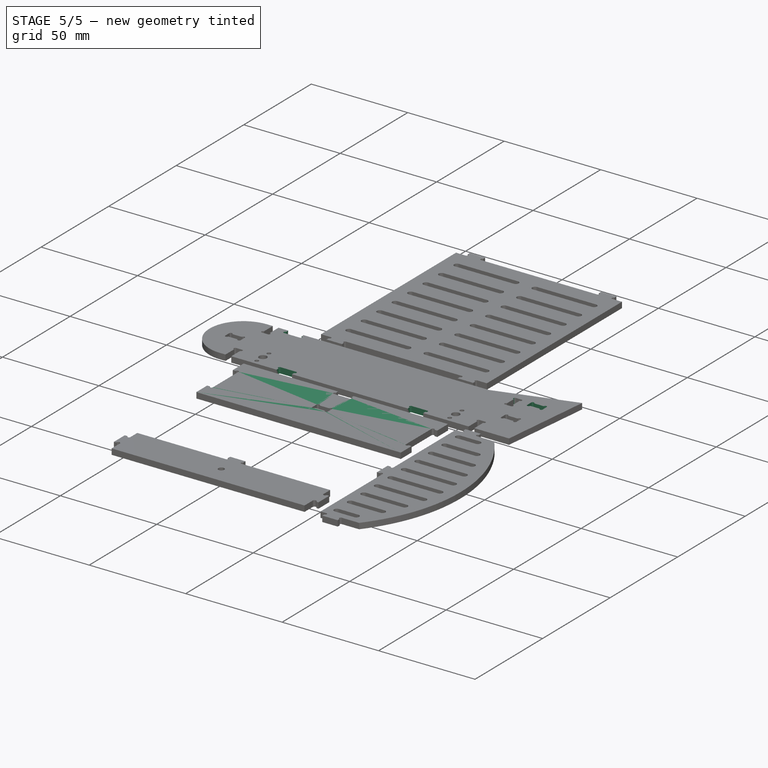
[diagram: stage 5 of 5 — iso view after this stage's code; geometry added in this stage tinted green]
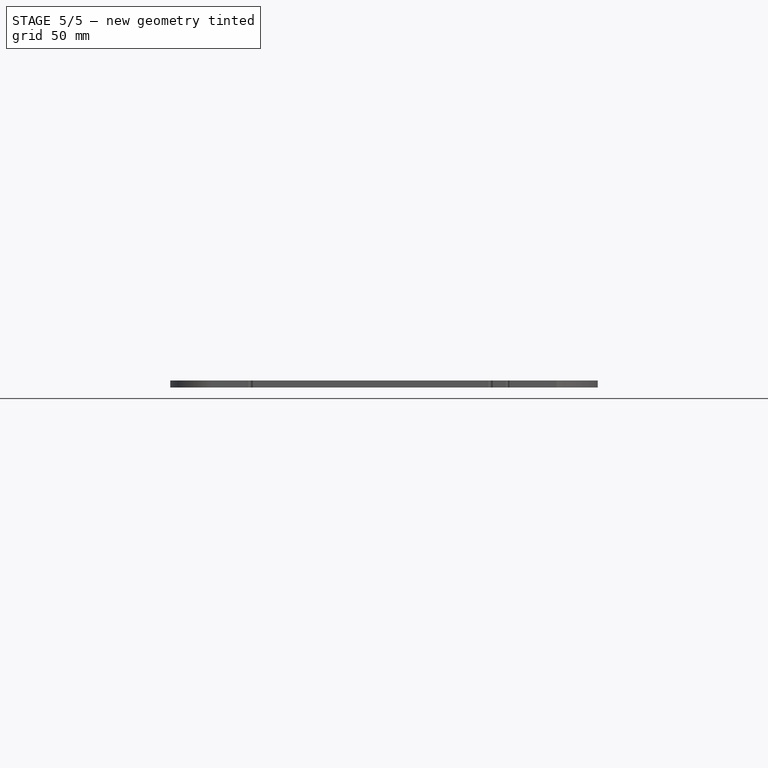
[diagram: stage 5 of 5 — front view after this stage's code; geometry added in this stage tinted green]
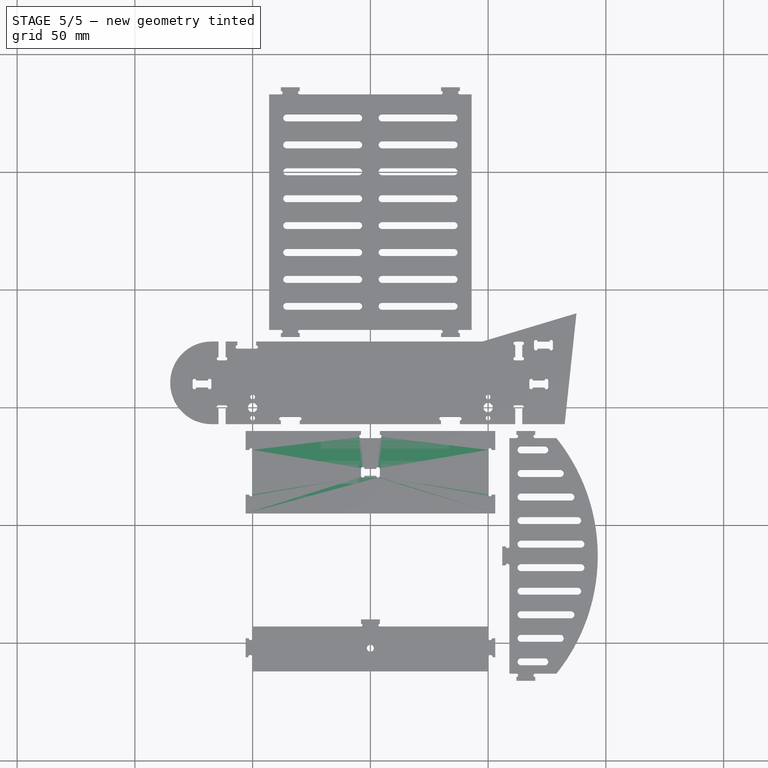
[diagram: stage 5 of 5 — top view after this stage's code; geometry added in this stage tinted green]
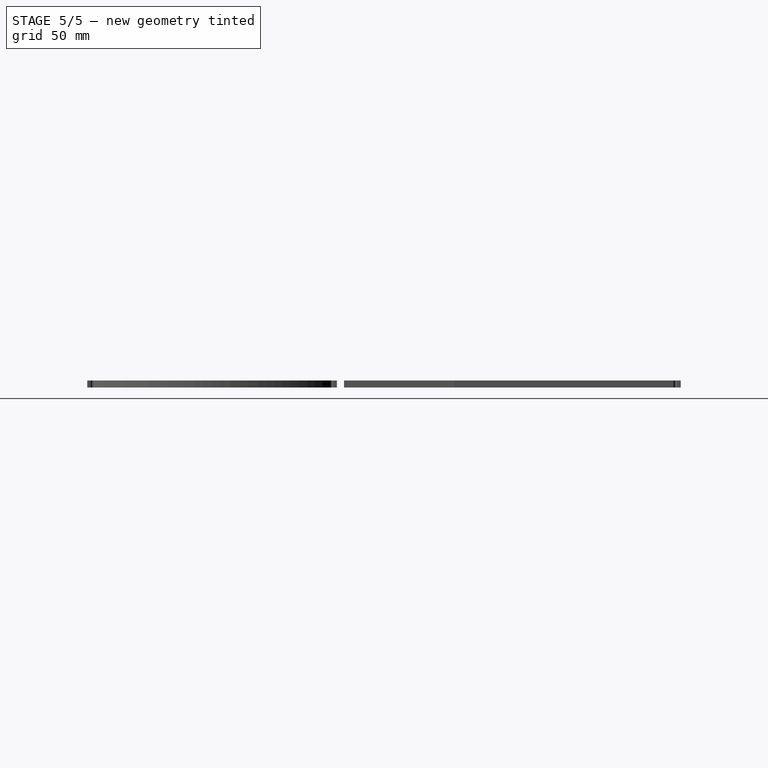
[diagram: stage 5 of 5 — right view after this stage's code; geometry added in this stage tinted green]
FEATURE [Sketcher::SketchObject] Sketch002
  ExternalGeometry = -> [Mirrored]
  Placement = pos=(0,0,3) rot=(0,0,1;0rad)
  Support = -> Mirrored [Face5]
  sketch-geometry (4):
    g0: ArcOfCircle CenterX=61.5 CenterY=27.249 CenterZ=0 NormalX=0 NormalY=0 NormalZ=1 Radius=0.751 StartAngle=1.5708 EndAngle=4.71239
    g1: ArcOfCircle CenterX=64.5 CenterY=27.249 CenterZ=0 NormalX=0 NormalY=0 NormalZ=1 Radius=0.751 StartAngle=4.71239 EndAngle=7.85398
    g2: LineSegment StartX=61.5 StartY=26.498 StartZ=0 EndX=64.5 EndY=26.498 EndZ=0
    g3: LineSegment StartX=61.5 StartY=28 StartZ=0 EndX=64.5 EndY=28 EndZ=0
  constraints (12):
    c: PointOnObject(g0,g-3)
    c: PointOnObject(g0,g-3)
    c: Coincident(g0,g-3)
    c: PointOnObject(g1,g-4)
    c: PointOnObject(g1,g-4)
    c: Coincident(g1,g-4)
    c: Equal(g0,g1)
    c: Equal(g-5,g1)
    c: Coincident(g2,g0)
    c: Coincident(g2,g1)
    c: Coincident(g1,g3)
    c: Coincident(g0,g3)
FEATURE [PartDesign::Pocket] Pocket001
  Length = 5
  Sketch = -> Sketch002
  Type = 1
FEATURE [Sketcher::SketchObject] Sketch003
  ExternalGeometry = -> [Pocket001]
  Placement = pos=(0,0,3) rot=(0,0,1;0rad)
  Support = -> Pocket001 [Face5]
  sketch-geometry (8):
    g0: LineSegment StartX=-38 StartY=-4 StartZ=0 EndX=-30 EndY=-4 EndZ=0
    g1: LineSegment [constr] StartX=-30 StartY=-4 StartZ=0 EndX=-30 EndY=-7 EndZ=0
    g2: LineSegment StartX=-30 StartY=-7 StartZ=0 EndX=-38 EndY=-7 EndZ=0
    g3: LineSegment [constr] StartX=-38 StartY=-7 StartZ=0 EndX=-38 EndY=-4 EndZ=0
    g4: ArcOfCircle CenterX=-30 CenterY=-4.751 CenterZ=0 NormalX=0 NormalY=0 NormalZ=1 Radius=0.751 StartAngle=4.71239 EndAngle=7.85398
    g5: ArcOfCircle CenterX=-38 CenterY=-4.751 CenterZ=0 NormalX=0 NormalY=0 NormalZ=1 Radius=0.751 StartAngle=1.5708 EndAngle=4.71239
    g6: LineSegment StartX=-38 StartY=-5.502 StartZ=0 EndX=-38 EndY=-7 EndZ=0
    g7: LineSegment StartX=-30 StartY=-5.502 StartZ=0 EndX=-30 EndY=-7 EndZ=0
  constraints (24):
    c: Coincident(g0,g1)
    c: Coincident(g1,g2)
    c: Coincident(g2,g3)
    c: Coincident(g3,g0)
    c: Horizontal(g0)
    c: Horizontal(g2)
    c: Vertical(g1)
    c: Vertical(g3)
    c: PointOnObject(g1,g-3)
    c: DistanceX(g2,g1) = 8
    c: DistanceX(g-1,g1) = -30
    c: DistanceY(g3) = 3
    c: PointOnObject(g4,g1)
    c: Coincident(g4,g0)
    c: PointOnObject(g4,g1)
    c: PointOnObject(g5,g3)
    c: Coincident(g5,g0)
    c: PointOnObject(g5,g3)
    c: Equal(g-4,g5)
    c: Equal(g5,g4)
    c: Coincident(g5,g6)
    c: Coincident(g6,g2)
    c: Coincident(g4,g7)
    c: Coincident(g7,g1)
FEATURE [PartDesign::Pocket] Pocket002
  Length = 5
  Sketch = -> Sketch003
  Type = 1
FEATURE [PartDesign::Mirrored] Mirrored001
  MirrorPlane = -> Sketch003 [V_Axis]
  Originals = -> [Pocket002]
FEATURE [Sketcher::SketchObject] Sketch005
  ExternalGeometry = -> [Pad001]
  Placement = pos=(0,0,3) rot=(0,0,1;0rad)
  Support = -> Pad001 [Face6]
  sketch-geometry (34):
    g0: LineSegment [constr] StartX=-53 StartY=-18 StartZ=0 EndX=-50 EndY=-18 EndZ=0
    g1: LineSegment StartX=-50 StartY=-18 StartZ=0 EndX=-50 EndY=-37 EndZ=0
    g2: LineSegment [constr] StartX=-50 StartY=-37 StartZ=0 EndX=-53 EndY=-37 EndZ=0
    g3: LineSegment StartX=-53 StartY=-37 StartZ=0 EndX=-53 EndY=-18 EndZ=0
    g4: LineSegment [constr] StartX=50 StartY=-18 StartZ=0 EndX=53 EndY=-18 EndZ=0
    g5: LineSegment StartX=53 StartY=-18 StartZ=0 EndX=53 EndY=-37 EndZ=0
    g6: LineSegment [constr] StartX=53 StartY=-37 StartZ=0 EndX=50 EndY=-37 EndZ=0
    g7: LineSegment StartX=50 StartY=-37 StartZ=0 EndX=50 EndY=-18 EndZ=0
    g8: LineSegment [constr] StartX=-4 StartY=-26 StartZ=0 EndX=4 EndY=-26 EndZ=0
    g9: LineSegment StartX=4 StartY=-26 StartZ=0 EndX=4 EndY=-29 EndZ=0
    g10: LineSegment [constr] StartX=4 StartY=-29 StartZ=0 EndX=-4 EndY=-29 EndZ=0
    g11: LineSegment StartX=-4 StartY=-29 StartZ=0 EndX=-4 EndY=-26 EndZ=0
    g12: ArcOfCircle CenterX=3.249 CenterY=-26 CenterZ=0 NormalX=0 NormalY=0 NormalZ=1 Radius=0.751 StartAngle=0 EndAngle=3.14159
    g13: ArcOfCircle CenterX=3.249 CenterY=-29 CenterZ=0 NormalX=0 NormalY=0 NormalZ=1 Radius=0.751 StartAngle=3.14159 EndAngle=6.28319
    g14: ArcOfCircle CenterX=-3.249 CenterY=-26 CenterZ=0 NormalX=0 NormalY=0 NormalZ=1 Radius=0.751 StartAngle=0 EndAngle=3.14159
    g15: ArcOfCircle CenterX=-3.249 CenterY=-29 CenterZ=0 NormalX=0 NormalY=0 NormalZ=1 Radius=0.751 StartAngle=3.14159 EndAngle=6.28319
    g16: LineSegment StartX=-2.498 StartY=-26 StartZ=0 EndX=2.498 EndY=-26 EndZ=0
    g17: LineSegment StartX=-2.498 StartY=-29 StartZ=0 EndX=2.498 EndY=-29 EndZ=0
    g18: ArcOfCircle CenterX=-50.751 CenterY=-18 CenterZ=0 NormalX=0 NormalY=0 NormalZ=1 Radius=0.751 StartAngle=0 EndAngle=3.14159
    g19: ArcOfCircle CenterX=-50.751 CenterY=-37 CenterZ=0 NormalX=0 NormalY=0 NormalZ=1 Radius=0.751 StartAngle=3.14159 EndAngle=6.28319
    g20: LineSegment StartX=-53 StartY=-18 StartZ=0 EndX=-51.502 EndY=-18 EndZ=0
    g21: LineSegment StartX=-51.502 StartY=-37 StartZ=0 EndX=-53 EndY=-37 EndZ=0
    g22: ArcOfCircle CenterX=50.751 CenterY=-18 CenterZ=0 NormalX=0 NormalY=0 NormalZ=1 Radius=0.751 StartAngle=0 EndAngle=3.14159
    g23: LineSegment StartX=51.502 StartY=-18 StartZ=0 EndX=53 EndY=-18 EndZ=0
    g24: ArcOfCircle CenterX=50.751 CenterY=-37 CenterZ=0 NormalX=0 NormalY=0 NormalZ=1 Radius=0.751 StartAngle=3.14159 EndAngle=6.28319
    g25: LineSegment StartX=51.502 StartY=-37 StartZ=0 EndX=53 EndY=-37 EndZ=0
    g26: LineSegment StartX=-4 StartY=-10 StartZ=0 EndX=4 EndY=-10 EndZ=0
    g27: LineSegment [constr] StartX=4 StartY=-10 StartZ=0 EndX=4 EndY=-13 EndZ=0
    g28: LineSegment StartX=4 StartY=-13 StartZ=0 EndX=-4 EndY=-13 EndZ=0
    g29: LineSegment [constr] StartX=-4 StartY=-13 StartZ=0 EndX=-4 EndY=-10 EndZ=0
    g30: ArcOfCircle CenterX=-4 CenterY=-12.249 CenterZ=0 NormalX=0 NormalY=0 NormalZ=1 Radius=0.751 StartAngle=1.5708 EndAngle=4.71239
    g31: ArcOfCircle CenterX=4 CenterY=-12.249 CenterZ=0 NormalX=0 NormalY=0 NormalZ=1 Radius=0.751 StartAngle=4.71239 EndAngle=7.85398
    g32: LineSegment StartX=4 StartY=-11.498 StartZ=0 EndX=4 EndY=-10 EndZ=0
    g33: LineSegment StartX=-4 StartY=-10 StartZ=0 EndX=-4 EndY=-11.498 EndZ=0
  constraints (104):
    c: Coincident(g0,g1)
    c: Coincident(g1,g2)
    c: Coincident(g2,g3)
    c: Coincident(g3,g0)
    c: Horizontal(g0)
    c: Horizontal(g2)
    c: Vertical(g1)
    c: Vertical(g3)
    c: Coincident(g4,g5)
    c: Coincident(g5,g6)
    c: Coincident(g6,g7)
    c: Coincident(g7,g4)
    c: Horizontal(g4)
    c: Horizontal(g6)
    c: Vertical(g5)
    c: Vertical(g7)
    c: PointOnObject(g0,g-3)
    c: PointOnObject(g4,g-4)
    c: DistanceY(g0,g-3) = 8
    c: DistanceY(g2,g-3) = -8
    c: DistanceY(g-4,g5) = 8
    c: DistanceY(g-4,g4) = -8
    c: Equal(g2,g6)
    c: DistanceX(g6) = -3
    c: Coincident(g8,g9)
    c: Coincident(g9,g10)
    c: Coincident(g10,g11)
    c: Coincident(g11,g8)
    c: Horizontal(g8)
    c: Horizontal(g10)
    c: Vertical(g9)
    c: Vertical(g11)
    c: Symmetric(g10,g9,g-2)
    c: DistanceY(g8,g9) = -3
    c: DistanceY(g8,g-4) = 16
    c: DistanceX(g8,g8) = 8
    c: PointOnObject(g12,g8)
    c: Coincident(g12,g8)
    c: PointOnObject(g12,g8)
    c: PointOnObject(g13,g10)
    c: Coincident(g13,g9)
    c: PointOnObject(g13,g10)
    c: PointOnObject(g14,g8)
    c: Coincident(g14,g8)
    c: PointOnObject(g14,g8)
    c: PointOnObject(g15,g10)
    c: Coincident(g15,g10)
    c: PointOnObject(g15,g10)
    c: Equal(g15,g14)
    c: Equal(g14,g12)
    c: Equal(g12,g13)
    c: Radius(g12) = 0.751
    c: Coincident(g12,g16)
    c: Coincident(g16,g14)
    c: Coincident(g13,g17)
    c: Coincident(g17,g15)
    c: PointOnObject(g18,g0)
    c: PointOnObject(g18,g0)
    c: Coincident(g18,g0)
    c: PointOnObject(g19,g2)
    c: Coincident(g19,g1)
    c: PointOnObject(g19,g2)
    c: Coincident(g18,g20)
    c: Coincident(g20,g0)
    c: Coincident(g19,g21)
    c: Coincident(g2,g21)
    c: Equal(g19,g18)
    c: Equal(g18,g12)
    c: PointOnObject(g22,g4)
    c: Coincident(g22,g4)
    c: PointOnObject(g22,g4)
    c: Coincident(g23,g22)
    c: Coincident(g23,g4)
    c: PointOnObject(g24,g6)
    c: Coincident(g24,g6)
    c: PointOnObject(g24,g6)
    c: Coincident(g5,g25)
    c: Coincident(g25,g24)
    c: Equal(g24,g22)
    c: Equal(g22,g12)
    c: Coincident(g26,g27)
    c: Coincident(g27,g28)
    c: Coincident(g28,g29)
    c: Coincident(g29,g26)
    c: Horizontal(g26)
    c: Horizontal(g28)
    c: Vertical(g27)
    c: Vertical(g29)
    c: Symmetric(g26,g26,g-2)
    c: DistanceX(g26) = 8
    c: PointOnObject(g26,g-5)
    c: Equal(g9,g27)
    c: PointOnObject(g30,g29)
    c: Coincident(g30,g28)
    c: PointOnObject(g30,g29)
    c: Coincident(g31,g27)
    c: PointOnObject(g31,g27)
    c: PointOnObject(g31,g27)
    c: Equal(g30,g31)
    c: Equal(g31,g12)
    c: Coincident(g31,g32)
    c: Coincident(g26,g32)
    c: Coincident(g33,g30)
    c: Coincident(g33,g26)
FEATURE [PartDesign::Pocket] Pocket003
  Length = 5
  Sketch = -> Sketch005
  Type = 1
FEATURE [Sketcher::SketchObject] Sketch008
  ExternalGeometry = -> [Mirrored001]
  Placement = pos=(0,0,3) rot=(0,0,1;0rad)
  Support = -> Mirrored001 [Face5]
  sketch-geometry (18):
    g0: LineSegment StartX=-48.5 StartY=28 StartZ=0 EndX=-56.5 EndY=28 EndZ=0
    g1: LineSegment [constr] StartX=-56.5 StartY=28 StartZ=0 EndX=-56.5 EndY=25 EndZ=0
    g2: LineSegment StartX=-56.5 StartY=25 StartZ=0 EndX=-48.5 EndY=25 EndZ=0
    g3: LineSegment [constr] StartX=-48.5 StartY=25 StartZ=0 EndX=-48.5 EndY=28 EndZ=0
    g4: ArcOfCircle CenterX=-48.5 CenterY=25.751 CenterZ=0 NormalX=0 NormalY=0 NormalZ=1 Radius=0.751 StartAngle=4.71239 EndAngle=7.85398
    g5: ArcOfCircle CenterX=-56.5 CenterY=25.751 CenterZ=0 NormalX=0 NormalY=0 NormalZ=1 Radius=0.751 StartAngle=1.5708 EndAngle=4.71239
    g6: LineSegment StartX=-48.5 StartY=28 StartZ=0 EndX=-48.5 EndY=26.502 EndZ=0
    g7: LineSegment StartX=-56.5 StartY=28 StartZ=0 EndX=-56.5 EndY=26.502 EndZ=0
    g8: LineSegment [constr] StartX=69.5 StartY=28 StartZ=0 EndX=77.5 EndY=28 EndZ=0
    g9: LineSegment StartX=77.5 StartY=28 StartZ=0 EndX=77.5 EndY=25 EndZ=0
    g10: LineSegment [constr] StartX=77.5 StartY=25 StartZ=0 EndX=69.5 EndY=25 EndZ=0
    g11: LineSegment StartX=69.5 StartY=25 StartZ=0 EndX=69.5 EndY=28 EndZ=0
    g12: ArcOfCircle CenterX=70.251 CenterY=28 CenterZ=0 NormalX=0 NormalY=0 NormalZ=1 Radius=0.751 StartAngle=0 EndAngle=3.14159
    g13: ArcOfCircle CenterX=76.749 CenterY=28 CenterZ=0 NormalX=0 NormalY=0 NormalZ=1 Radius=0.751 StartAngle=0 EndAngle=3.14159
    g14: ArcOfCircle CenterX=70.251 CenterY=25 CenterZ=0 NormalX=0 NormalY=0 NormalZ=1 Radius=0.751 StartAngle=3.14159 EndAngle=6.28319
    g15: ArcOfCircle CenterX=76.749 CenterY=25 CenterZ=0 NormalX=0 NormalY=0 NormalZ=1 Radius=0.751 StartAngle=3.14159 EndAngle=6.28319
    g16: LineSegment StartX=71.002 StartY=28 StartZ=0 EndX=75.998 EndY=28 EndZ=0
    g17: LineSegment StartX=71.002 StartY=25 StartZ=0 EndX=75.998 EndY=25 EndZ=0
  constraints (56):
    c: Coincident(g0,g1)
    c: Coincident(g1,g2)
    c: Coincident(g2,g3)
    c: Coincident(g3,g0)
    c: Horizontal(g0)
    c: Horizontal(g2)
    c: Vertical(g1)
    c: Vertical(g3)
    c: DistanceX(g0) = -8
    c: DistanceY(g3) = 3
    c: PointOnObject(g0,g-3)
    c: DistanceX(g-3,g0) = 5
    c: PointOnObject(g4,g3)
    c: Coincident(g4,g2)
    c: PointOnObject(g4,g3)
    c: PointOnObject(g5,g1)
    c: Coincident(g5,g1)
    c: PointOnObject(g5,g1)
    c: Equal(g-4,g5)
    c: Equal(g5,g4)
    c: Coincident(g6,g0)
    c: Coincident(g6,g4)
    c: Coincident(g7,g0)
    c: Coincident(g7,g5)
    c: Coincident(g8,g9)
    c: Coincident(g9,g10)
    c: Coincident(g10,g11)
    c: Coincident(g11,g8)
    c: Horizontal(g8)
    c: Horizontal(g10)
    c: Vertical(g9)
    c: Vertical(g11)
    c: DistanceX(g8) = 8
    c: DistanceX(g-3,g8) = 22
    c: DistanceY(g8,g9) = -3
    c: PointOnObject(g8,g-3)
    c: PointOnObject(g12,g8)
    c: Coincident(g12,g8)
    c: PointOnObject(g12,g8)
    c: PointOnObject(g13,g8)
    c: Coincident(g13,g8)
    c: PointOnObject(g13,g8)
    c: PointOnObject(g14,g10)
    c: Coincident(g14,g10)
    c: PointOnObject(g14,g10)
    c: PointOnObject(g15,g10)
    c: Coincident(g15,g9)
    c: PointOnObject(g15,g10)
    c: Equal(g14,g15)
    c: Equal(g15,g12)
    c: Equal(g12,g13)
    c: Equal(g13,g-4)
    c: Coincident(g16,g13)
    c: Coincident(g16,g12)
    c: Coincident(g17,g14)
    c: Coincident(g17,g15)
FEATURE [PartDesign::Pocket] Pocket005  label="Side (2)"
  Length = 5
  Sketch = -> Sketch008
  Type = 1
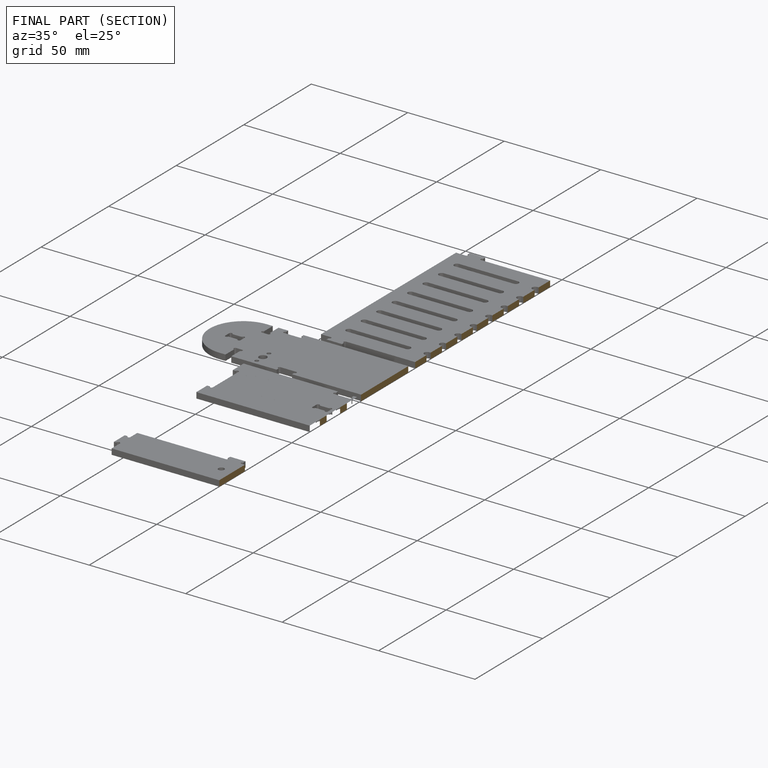
[diagram: finished part — half-section view (interior)]
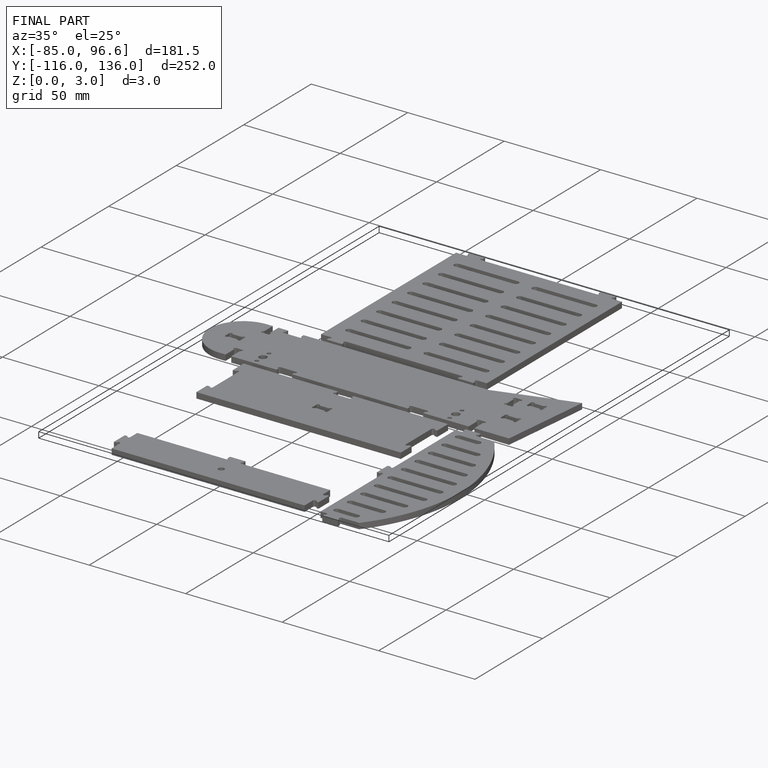
[diagram: finished part — iso view with bounding-box wireframe]
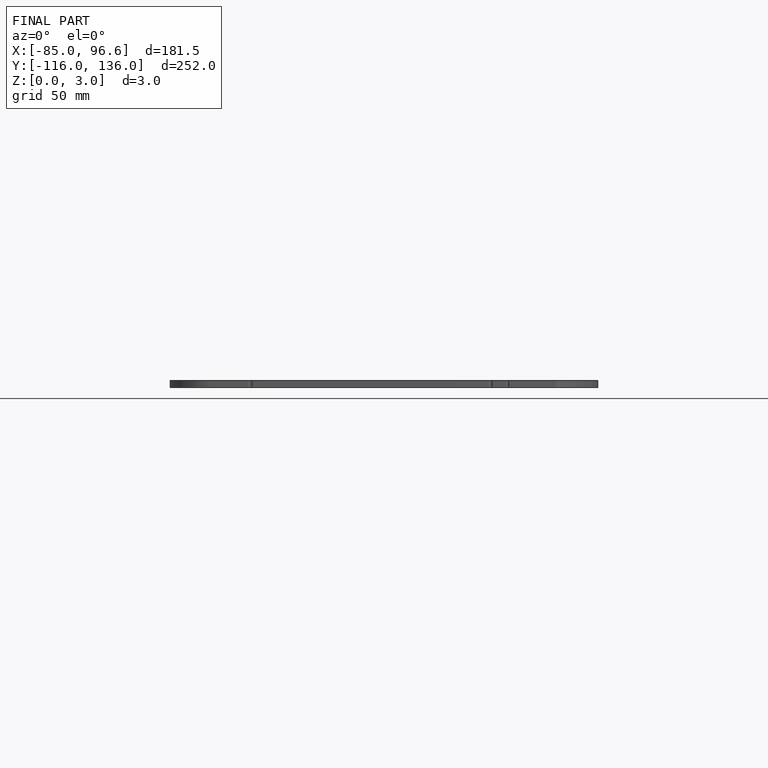
[diagram: finished part — front view with bounding-box wireframe]
